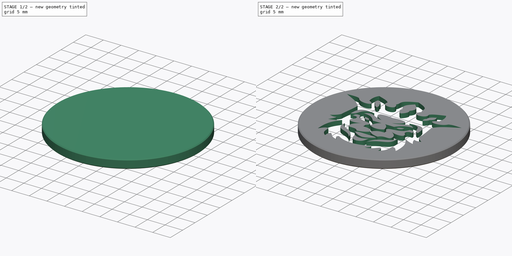
[diagram: build sequence overview — one tinted view per stage of 2, left to right]
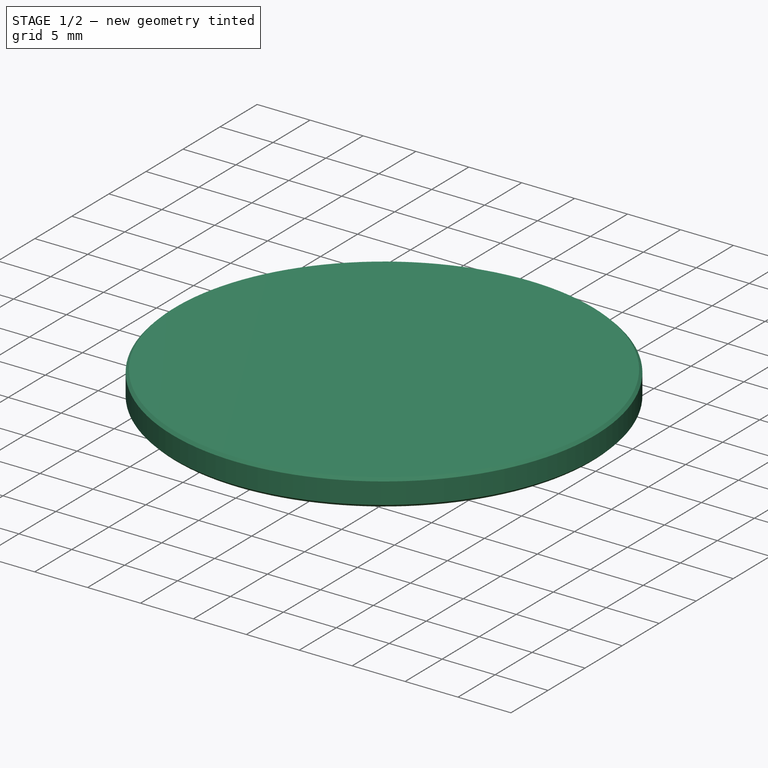
[diagram: stage 1 of 2 — iso view after this stage's code; geometry added in this stage tinted green]
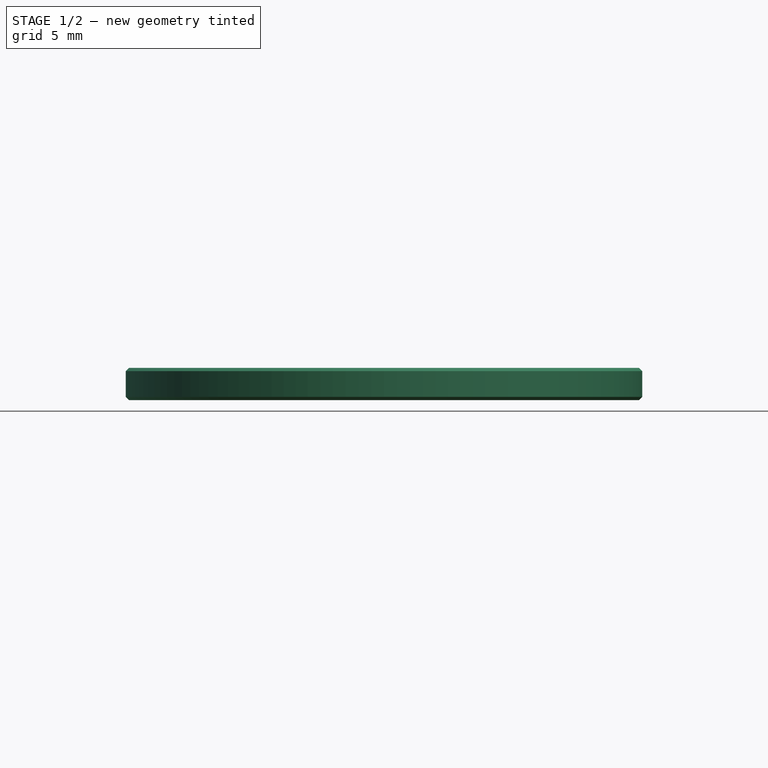
[diagram: stage 1 of 2 — front view after this stage's code; geometry added in this stage tinted green]
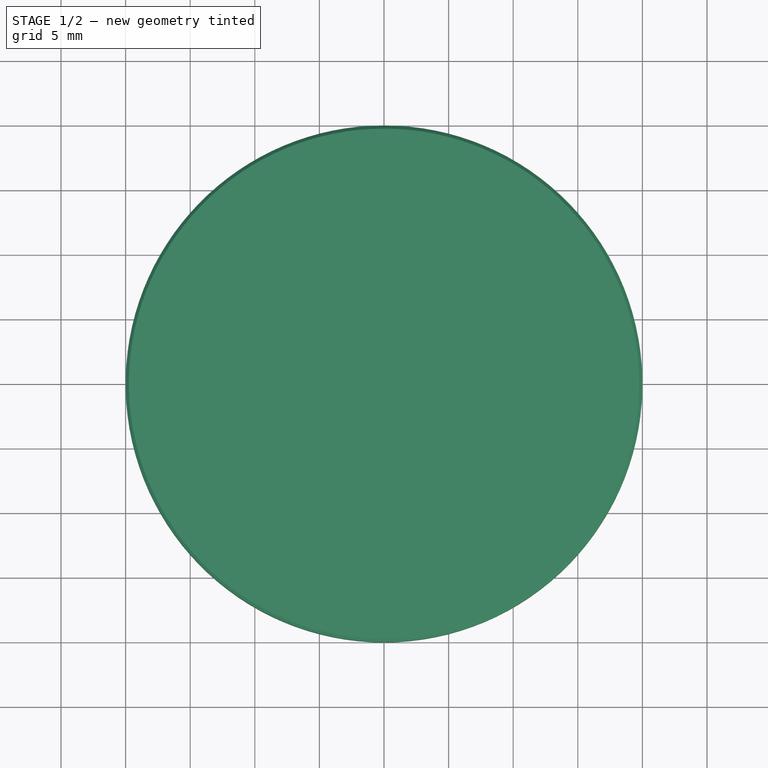
[diagram: stage 1 of 2 — top view after this stage's code; geometry added in this stage tinted green]
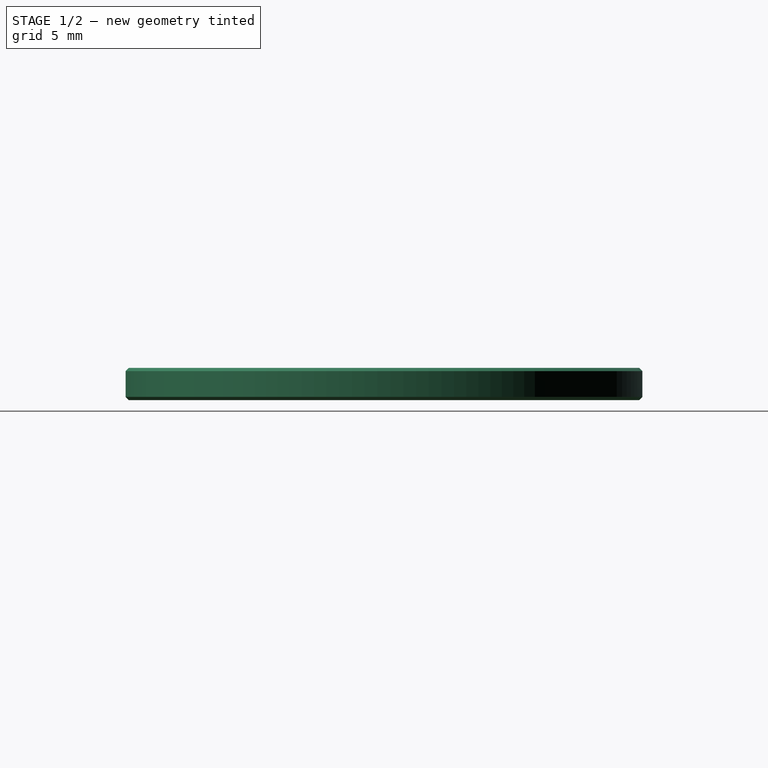
[diagram: stage 1 of 2 — right view after this stage's code; geometry added in this stage tinted green]
FCSTD DOCUMENT  (FreeCAD 0.20R29603 (Git))
Label: lion-coin-60813
License: All rights reserved
LicenseURL: http://en.wikipedia.org/wiki/All_rights_reserved
objects: Part::Feature×29, Sketcher::SketchObject×6, App::DocumentObjectGroup×4, PartDesign::Plane×2, Part::FeaturePython×2, App::TextDocument×1, Spreadsheet::Sheet×1, PartDesign::Revolution×1, PartDesign::Pocket×1, PartDesign::Body×1
note: 44 computed .brp shape members not serialized (recipe doc carries the construction recipe); baked Part::Feature solids carry a one-line shape summary decoded from their .brp

FEATURE [App::TextDocument] Text_document  label="Text document"
  Text = https://publicdomainvectors.org/en/free-clipart/Lion-icon/60813.html
FEATURE [Spreadsheet::Sheet] Spreadsheet
  cells = A2=Vector X center; B2=vec_x; C2(dim_vec_x)==-16.6 mm; A3=Vector Y center; B3=vec_y; C3(dim_vec_y)==14 mm; A4=Coin radius; B4=coin_r; C4(dim_coin_r)==20 mm; A5=Coin height; B5=coin_h; C5(dim_coin_h)==2.5 mm; D5==2.5 mm; A6=Engrave depth; B6=engrave_h; C6(dim_engrave_h)==dim_coin_h / 2; A7=Chamfer width; B7=chamfer_w; C7(dim_chamfer_w)==dim_coin_h / 10; A8=Chamfer radius; B8=chamfer_r; C8(dim_chamfer_r)==dim_coin_r - dim_chamfer_w; A9=SVG Scale; B9=svg_scale; C9=0.06; A11=Edge dimple radius; B11=dimple_r; C11(dim_dimple_r)==0.5 mm; A12=Edge dimple count; B12=dimple_count; C12(dim_dimple_count)=64
FEATURE [PartDesign::Plane] DatumPlane  label="BaseXYDatumPlane"
  Length = 60
  MapMode = 5
  ResizeMode = 0
  Support = -> [XY_Plane]
  Width = 60
FEATURE [Sketcher::SketchObject] Sketch001  label="CircleSketch"
  FullyConstrained = true
  MapMode = 5
  Support = -> [DatumPlane]
  expr: Constraints[1] = Spreadsheet.dim_coin_r - Spreadsheet.dim_chamfer_w
  expr: Constraints[3] = Spreadsheet.dim_coin_r - 1 mm
  sketch-geometry (6):
    g0: Circle CenterX=0 CenterY=0 CenterZ=0 NormalX=0 NormalY=0 NormalZ=1 AngleXU=0 Radius=19.75
    g1: Circle CenterX=0 CenterY=0 CenterZ=0 NormalX=0 NormalY=0 NormalZ=1 AngleXU=0 Radius=19
    g2: LineSegment StartX=0 StartY=0 StartZ=0 EndX=0 EndY=19 EndZ=0
    g3: LineSegment StartX=0 StartY=0 StartZ=0 EndX=0 EndY=-19 EndZ=0
    g4: LineSegment StartX=0 StartY=0 StartZ=0 EndX=-19 EndY=0 EndZ=0
    g5: LineSegment StartX=0 StartY=0 StartZ=0 EndX=19 EndY=0 EndZ=0
  constraints (16):
    c: Coincident(g0,g-1)
    c: Radius(g0) = 19.75
    c: Coincident(g1,g0)
    c: Radius(g1) = 19
    c: Coincident(g2,g0)
    c: PointOnObject(g2,g1)
    c: Vertical(g2)
    c: Coincident(g3,g0)
    c: PointOnObject(g3,g1)
    c: Vertical(g3)
    c: Coincident(g4,g0)
    c: PointOnObject(g4,g1)
    c: Horizontal(g4)
    c: Coincident(g5,g0)
    c: PointOnObject(g5,g1)
    c: Horizontal(g5)
FEATURE [PartDesign::Plane] DatumPlane001  label="ProfileYZDatumPlane"
  Length = 60
  MapMode = 5
  Placement = pos=(0,0,0) rot=(0.57735,0.57735,0.57735;2.0944rad)
  ResizeMode = 0
  Support = -> [YZ_Plane]
  Width = 60
FEATURE [Sketcher::SketchObject] Sketch  label="CoinProfileSketch"
  FullyConstrained = true
  MapMode = 5
  Placement = pos=(0,0,0) rot=(0.57735,0.57735,0.57735;2.0944rad)
  Support = -> [DatumPlane001]
  expr: Constraints[10] = Spreadsheet.dim_chamfer_w
  expr: Constraints[12] = Spreadsheet.dim_coin_h
  expr: Constraints[13] = Spreadsheet.dim_coin_r
  expr: Constraints[14] = Spreadsheet.dim_coin_r
  expr: Constraints[15] = Spreadsheet.dim_coin_h
  expr: Constraints[16] = Spreadsheet.dim_chamfer_r
  sketch-geometry (11):
    g0: LineSegment StartX=0 StartY=0 StartZ=0 EndX=0 EndY=-2.5 EndZ=0
    g1: LineSegment StartX=19.75 StartY=0 StartZ=0 EndX=20 EndY=-0.25 EndZ=0
    g2: LineSegment StartX=20 StartY=-0.25 StartZ=0 EndX=20 EndY=-2.25 EndZ=0
    g3: LineSegment StartX=20.25 StartY=0 StartZ=0 EndX=20 EndY=0 EndZ=0
    g4: LineSegment StartX=20 StartY=0 StartZ=0 EndX=20 EndY=-0.25 EndZ=0
    g5: LineSegment StartX=20 StartY=-2.25 StartZ=0 EndX=20 EndY=-2.5 EndZ=0
    g6: LineSegment StartX=0 StartY=0 StartZ=0 EndX=19.75 EndY=0 EndZ=0
    g7: LineSegment StartX=19.75 StartY=0 StartZ=0 EndX=20 EndY=0 EndZ=0
    g8: LineSegment StartX=20 StartY=-2.5 StartZ=0 EndX=19.75 EndY=-2.5 EndZ=0
    g9: LineSegment StartX=19.75 StartY=-2.5 StartZ=0 EndX=0 EndY=-2.5 EndZ=0
    g10: LineSegment StartX=19.75 StartY=-2.5 StartZ=0 EndX=20 EndY=-2.25 EndZ=0
  constraints (31):
    c: Vertical(g0)
    c: Coincident(g1,g2)
    c: Vertical(g2)
    c: Horizontal(g3)
    c: Coincident(g4,g3)
    c: Coincident(g4,g1)
    c: Coincident(g5,g2)
    c: Vertical(g5)
    c: Vertical(g4)
    c: Equal(g3,g4)
    c: DistanceY(g5,g5) = 0.25
    c: Equal(g5,g4)
    c: DistanceY(g5,g3) = 2.5
    c: DistanceX(g0,g5) = 20
    c: DistanceX(g-1,g3) = 20
    c: DistanceY(g0,g-1) = 2.5
    c: DistanceX(g1) = 19.75
    c: Coincident(g6,g0)
    c: Coincident(g6,g1)
    c: Horizontal(g6)
    c: Coincident(g7,g1)
    c: Coincident(g7,g3)
    c: Horizontal(g7)
    c: Coincident(g8,g5)
    c: Horizontal(g8)
    c: Coincident(g9,g8)
    c: Coincident(g9,g0)
    c: Horizontal(g9)
    c: Coincident(g10,g9)
    c: Coincident(g10,g2)
    c: Equal(g9,g6)
FEATURE [PartDesign::Revolution] Revolution  label="CoinRevolution"
  Angle = 360
  Axis = (-1e-16,1e-16,1)
  Base = (0,0,0)
  Placement = pos=(0,0,0) rot=(0.57735,0.57735,0.57735;2.0944rad)
  Profile = -> Sketch
  ReferenceAxis = -> Sketch [V_Axis]
  Reversed = true
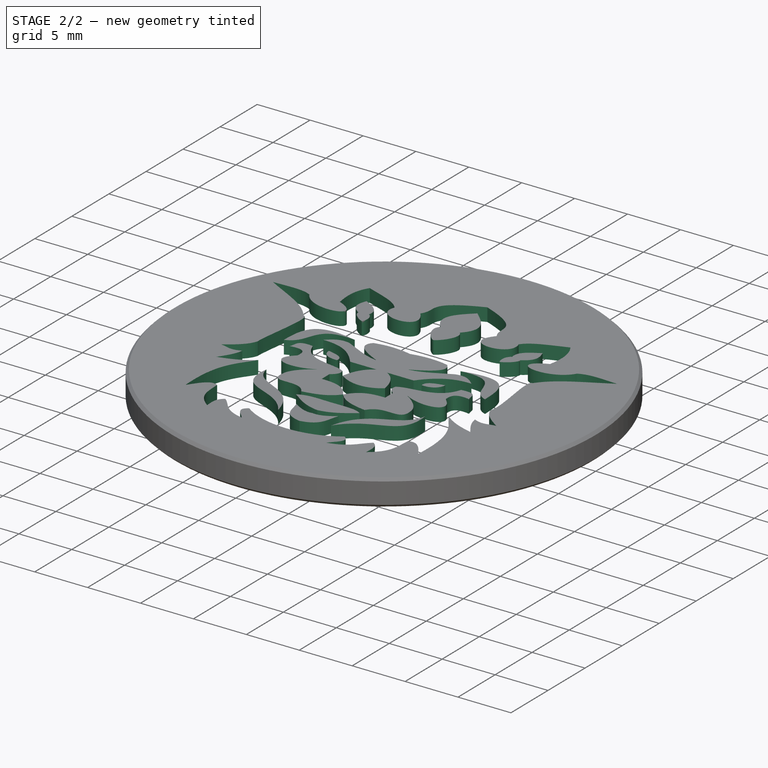
[diagram: stage 2 of 2 — iso view after this stage's code; geometry added in this stage tinted green]
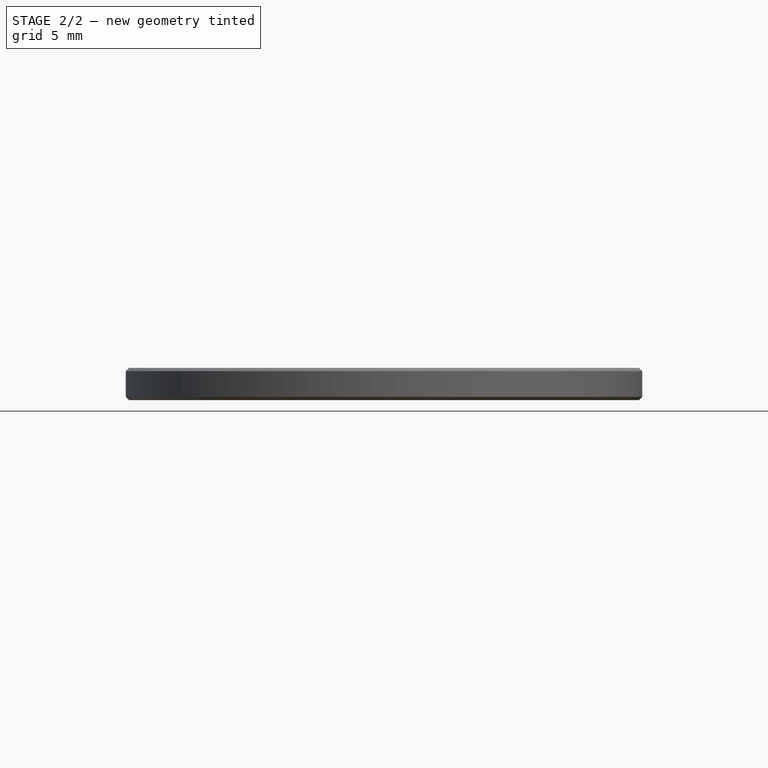
[diagram: stage 2 of 2 — front view after this stage's code; geometry added in this stage tinted green]
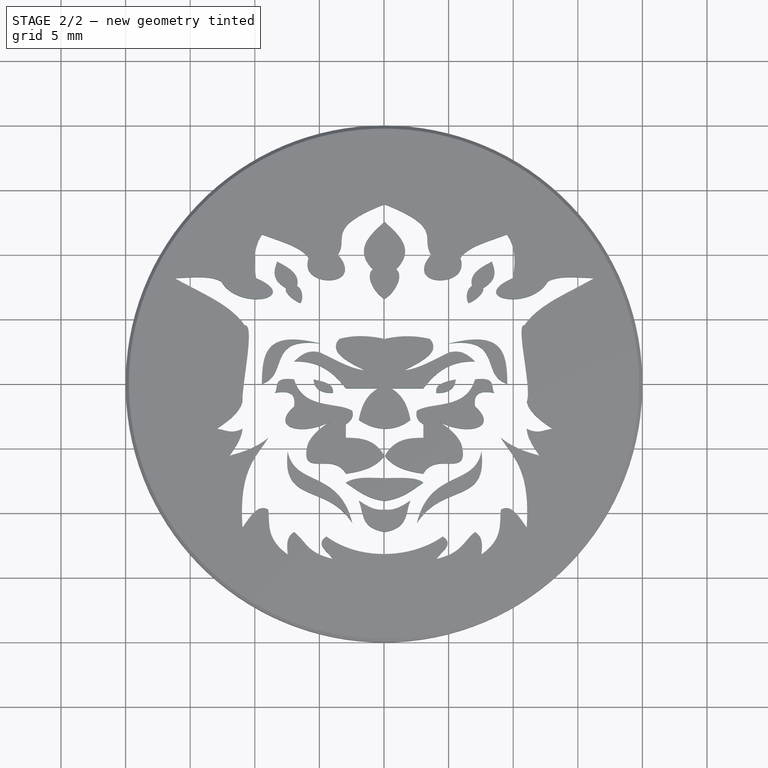
[diagram: stage 2 of 2 — top view after this stage's code; geometry added in this stage tinted green]
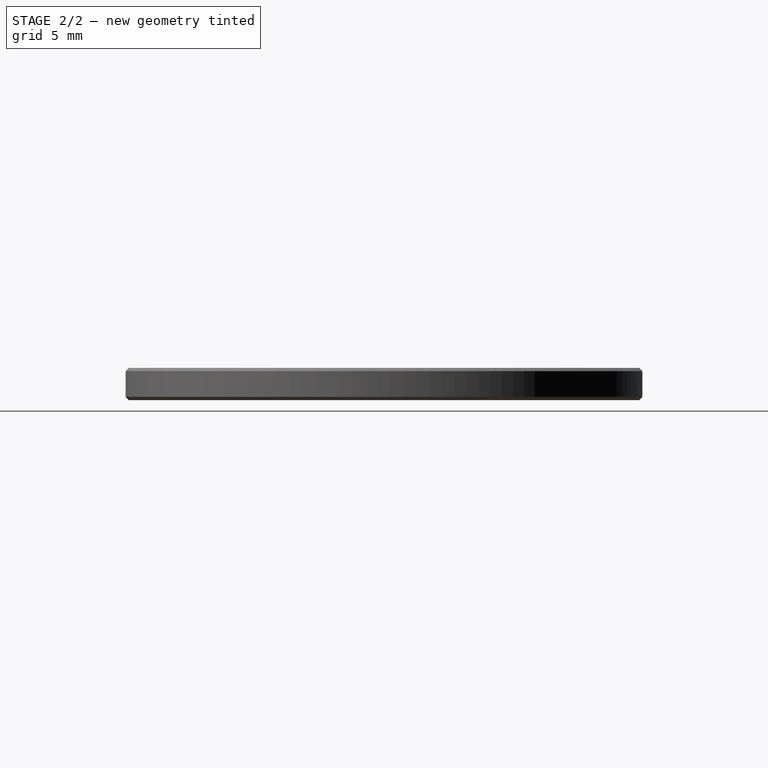
[diagram: stage 2 of 2 — right view after this stage's code; geometry added in this stage tinted green]
FEATURE [Sketcher::SketchObject] Sketch002  label="CoinEdgeProfileSketch"
  FullyConstrained = true
  MapMode = 5
  Placement = pos=(0,0,0) rot=(0.57735,0.57735,0.57735;2.0944rad)
  Support = -> [DatumPlane001]
  expr: Constraints[10] = Spreadsheet.dim_coin_r
  expr: Constraints[11] = Spreadsheet.dim_coin_h
  expr: Constraints[17] = Spreadsheet.dim_chamfer_r
  expr: Constraints[6] = Spreadsheet.dim_chamfer_w
  expr: Constraints[8] = Spreadsheet.dim_coin_h
  expr: Constraints[9] = Spreadsheet.dim_coin_r
  sketch-geometry (13):
    g0: LineSegment StartX=0 StartY=2e-16 StartZ=0 EndX=0 EndY=-2.5 EndZ=0
    g1: LineSegment StartX=20 StartY=-0.25 StartZ=0 EndX=20 EndY=-2.25 EndZ=0
    g2: LineSegment StartX=20 StartY=2e-16 StartZ=0 EndX=20 EndY=-0.25 EndZ=0
    g3: LineSegment StartX=20 StartY=-2.25 StartZ=0 EndX=20 EndY=-2.5 EndZ=0
    g4: LineSegment StartX=0 StartY=2e-16 StartZ=0 EndX=19 EndY=2e-16 EndZ=0
    g5: LineSegment StartX=19 StartY=2e-16 StartZ=0 EndX=19 EndY=-2.5 EndZ=0
    g6: LineSegment StartX=19 StartY=2e-16 StartZ=0 EndX=19.75 EndY=2e-16 EndZ=0
    g7: LineSegment StartX=19.75 StartY=2e-16 StartZ=0 EndX=20 EndY=-0.25 EndZ=0
    g8: LineSegment StartX=19.75 StartY=2e-16 StartZ=0 EndX=20 EndY=2e-16 EndZ=0
    g9: LineSegment StartX=20 StartY=-2.5 StartZ=0 EndX=19.75 EndY=-2.5 EndZ=0
    g10: LineSegment StartX=19 StartY=-2.5 StartZ=0 EndX=0 EndY=-2.5 EndZ=0
    g11: LineSegment StartX=19.75 StartY=-2.5 StartZ=0 EndX=20 EndY=-2.25 EndZ=0
    g12: LineSegment StartX=19.75 StartY=-2.5 StartZ=0 EndX=19 EndY=-2.5 EndZ=0
  constraints (36):
    c: Vertical(g0)
    c: Coincident(g0,g4)
    c: Vertical(g1)
    c: Coincident(g3,g1)
    c: Vertical(g3)
    c: Vertical(g2)
    c: DistanceY(g3,g3) = 0.25
    c: Equal(g3,g2)
    c: DistanceY(g3,g2) = 2.5
    c: DistanceX(g0,g3) = 20
    c: DistanceX(g-1,g2) = 20
    c: DistanceY(g0,g-1) = 2.5
    c: Horizontal(g4)
    c: Vertical(g5)
    c: DistanceX(g4,g2) = 1
    c: Coincident(g6,g5)
    c: Horizontal(g6)
    c: DistanceX(g0,g6) = 19.75
    c: Coincident(g7,g6)
    c: Coincident(g7,g1)
    c: Coincident(g8,g6)
    c: Coincident(g8,g2)
    c: Horizontal(g8)
    c: Coincident(g4,g5)
    c: Coincident(g2,g1)
    c: Coincident(g9,g3)
    c: Horizontal(g9)
    c: Coincident(g10,g5)
    c: Coincident(g10,g0)
    c: Horizontal(g10)
    c: Coincident(g11,g9)
    c: Coincident(g11,g1)
    c: Coincident(g12,g11)
    c: Coincident(g12,g5)
    c: Horizontal(g12)
    c: Equal(g12,g6)
FEATURE [Sketcher::SketchObject] Sketch004  label="EdgeDimpleSketch"
  FullyConstrained = true
  MapMode = 5
  Support = -> [DatumPlane]
  expr: Constraints[2] = Spreadsheet.dim_coin_r
  sketch-geometry (2):
    g0: LineSegment StartX=0 StartY=0 StartZ=0 EndX=20 EndY=0 EndZ=0
    g1: Circle CenterX=20 CenterY=0 CenterZ=0 NormalX=0 NormalY=0 NormalZ=1 AngleXU=0 Radius=0.5
  constraints (5):
    c: Horizontal(g0)
    c: Coincident(g1,g0)
    c: DistanceX(g0,g0) = 20
    c: Coincident(g0,g-1)
    c: Radius(g1) = 0.5
FEATURE [Part::Feature] path3882
  shape: bbox 31.92 x 23.25 x 5.657e-07 mm, 1 faces, 0 solids (baked)
FEATURE [Part::Feature] path3880
  shape: bbox 31.92 x 23.25 x 5.657e-07 mm, 1 faces, 0 solids (baked)
FEATURE [Part::Feature] path3878
  shape: bbox 47.88 x 17.19 x 5.657e-07 mm, 1 faces, 0 solids (baked)
FEATURE [Part::Feature] path3876
  shape: bbox 47.88 x 17.19 x 5.657e-07 mm, 1 faces, 0 solids (baked)
FEATURE [Part::Feature] path3874
  shape: bbox 40.28 x 53.15 x 5.657e-07 mm, 1 faces, 0 solids (baked)
FEATURE [Part::Feature] path3872
  shape: bbox 40.28 x 53.15 x 5.657e-07 mm, 1 faces, 0 solids (baked)
FEATURE [Part::Feature] path3870
  shape: bbox 40.28 x 53.15 x 5.657e-07 mm, 1 faces, 0 solids (baked)
FEATURE [Part::Feature] path3868
  shape: bbox 40.28 x 53.15 x 5.657e-07 mm, 1 faces, 0 solids (baked)
FEATURE [Part::Feature] path3866
  shape: bbox 12.12 x 10.03 x 5.657e-07 mm, 1 faces, 0 solids (baked)
FEATURE [Part::Feature] path3864
  shape: bbox 12.12 x 10.03 x 5.657e-07 mm, 1 faces, 0 solids (baked)
FEATURE [Part::Feature] path3862
  shape: bbox 12.12 x 10.03 x 5.657e-07 mm, 1 faces, 0 solids (baked)
FEATURE [Part::Feature] path3860
  shape: bbox 12.12 x 10.03 x 5.657e-07 mm, 1 faces, 0 solids (baked)
FEATURE [Part::Feature] path3858
  shape: bbox 67.73 x 70.12 x 5.657e-07 mm, 1 faces, 0 solids (baked)
FEATURE [Part::Feature] path3856
  shape: bbox 67.73 x 70.12 x 5.657e-07 mm, 1 faces, 0 solids (baked)
FEATURE [Part::Feature] path3854
  shape: bbox 67.73 x 70.14 x 5.657e-07 mm, 1 faces, 0 solids (baked)
FEATURE [Part::Feature] path3852
  shape: bbox 67.73 x 70.14 x 5.657e-07 mm, 1 faces, 0 solids (baked)
FEATURE [Part::Feature] path3850
  shape: bbox 35.91 x 32.85 x 5.657e-07 mm, 1 faces, 0 solids (baked)
FEATURE [Part::Feature] path3848
  shape: bbox 35.91 x 32.85 x 5.657e-07 mm, 1 faces, 0 solids (baked)
FEATURE [Part::Feature] path3846
  shape: bbox 35.91 x 32.85 x 5.657e-07 mm, 1 faces, 0 solids (baked)
FEATURE [Part::Feature] path3844
  shape: bbox 35.91 x 32.85 x 5.657e-07 mm, 1 faces, 0 solids (baked)
FEATURE [Part::Feature] path3842
  shape: bbox 111.7 x 68.58 x 5.657e-07 mm, 1 faces, 0 solids (baked)
FEATURE [Part::Feature] path3840
  shape: bbox 111.7 x 68.58 x 5.657e-07 mm, 1 faces, 0 solids (baked)
FEATURE [Part::Feature] path3838
  shape: bbox 17.21 x 30.75 x 5.657e-07 mm, 1 faces, 0 solids (baked)
FEATURE [Part::Feature] path3836
  shape: bbox 17.21 x 30.75 x 5.657e-07 mm, 1 faces, 0 solids (baked)
FEATURE [Part::Feature] path3834
  shape: bbox 17.21 x 30.75 x 5.657e-07 mm, 1 faces, 0 solids (baked)
FEATURE [Part::Feature] path3832
  shape: bbox 17.21 x 30.75 x 5.657e-07 mm, 1 faces, 0 solids (baked)
FEATURE [Part::Feature] path3830
  shape: bbox 25.6 x 56.91 x 5.657e-07 mm, 1 faces, 0 solids (baked)
FEATURE [App::DocumentObjectGroup] Group008  label="VectorDetailGroup"
  Group = -> [path3882,path3878,path3874,path3870,path3866,path3862,path3858,path3854,path3850,path3846,path3842,path3838,path3834,path3830]
FEATURE [Part::Feature] path3828
  shape: bbox 25.6 x 56.91 x 5.657e-07 mm, 1 faces, 0 solids (baked)
FEATURE [App::DocumentObjectGroup] Group  label="UnusedGroup"
  Group = -> [path3880,path3876,path3872,path3868,path3864,path3860,path3856,path3852,path3848,path3844,path3840,path3836,path3832,path3828]
FEATURE [Part::Feature] path3826
  shape: bbox 259.3 x 262.4 x 5.657e-07 mm, 1 faces, 0 solids (baked)
FEATURE [App::DocumentObjectGroup] Group007  label="VectorOutlineGroup"
  Group = -> [path3826]
FEATURE [Part::FeaturePython] Clone001  label="ResizeOutline012"  # Draft clone (typed FeaturePython)
  AttacherType = Attacher::AttachEngine3D
  Fuse = false
  Objects = -> [path3826]
  Placement = pos=(-16.6,14,0) rot=(0,0,1;0rad)
  Scale = (0.125328,0.104627,0.128631)
  expr: .Placement.Base.x = Spreadsheet.dim_vec_x
  expr: .Placement.Base.y = Spreadsheet.dim_vec_y
FEATURE [Sketcher::SketchObject] Sketch005  label="VectorOutlineSketch"
  FullyConstrained = false
  sketch-geometry (282):
    g0: BSplineCurve PolesCount=4 KnotsCount=2 Degree=3 IsPeriodic=0
    g1: BSplineCurve PolesCount=4 KnotsCount=2 Degree=3 IsPeriodic=0
    g2: BSplineCurve PolesCount=4 KnotsCount=2 Degree=3 IsPeriodic=0
    g3: BSplineCurve PolesCount=4 KnotsCount=2 Degree=3 IsPeriodic=0
    g4: BSplineCurve PolesCount=4 KnotsCount=2 Degree=3 IsPeriodic=0
    g5: BSplineCurve PolesCount=4 KnotsCount=2 Degree=3 IsPeriodic=0
    g6: BSplineCurve PolesCount=4 KnotsCount=2 Degree=3 IsPeriodic=0
    g7: BSplineCurve PolesCount=4 KnotsCount=2 Degree=3 IsPeriodic=0
    g8: BSplineCurve PolesCount=4 KnotsCount=2 Degree=3 IsPeriodic=0
    g9: BSplineCurve PolesCount=4 KnotsCount=2 Degree=3 IsPeriodic=0
    g10: BSplineCurve PolesCount=4 KnotsCount=2 Degree=3 IsPeriodic=0
    g11: BSplineCurve PolesCount=4 KnotsCount=2 Degree=3 IsPeriodic=0
    g12: BSplineCurve PolesCount=4 KnotsCount=2 Degree=3 IsPeriodic=0
    g13: BSplineCurve PolesCount=4 KnotsCount=2 Degree=3 IsPeriodic=0
    g14: BSplineCurve PolesCount=4 KnotsCount=2 Degree=3 IsPeriodic=0
    g15: BSplineCurve PolesCount=4 KnotsCount=2 Degree=3 IsPeriodic=0
    g16: BSplineCurve PolesCount=4 KnotsCount=2 Degree=3 IsPeriodic=0
    g17: BSplineCurve PolesCount=4 KnotsCount=2 Degree=3 IsPeriodic=0
    g18: BSplineCurve PolesCount=4 KnotsCount=2 Degree=3 IsPeriodic=0
    g19: BSplineCurve PolesCount=4 KnotsCount=2 Degree=3 IsPeriodic=0
    g20: BSplineCurve PolesCount=4 KnotsCount=2 Degree=3 IsPeriodic=0
    g21: BSplineCurve PolesCount=4 KnotsCount=2 Degree=3 IsPeriodic=0
    g22: BSplineCurve PolesCount=4 KnotsCount=2 Degree=3 IsPeriodic=0
    g23: BSplineCurve PolesCount=4 KnotsCount=2 Degree=3 IsPeriodic=0
    g24: BSplineCurve PolesCount=4 KnotsCount=2 Degree=3 IsPeriodic=0
    g25: BSplineCurve PolesCount=4 KnotsCount=2 Degree=3 IsPeriodic=0
    g26: BSplineCurve PolesCount=4 KnotsCount=2 Degree=3 IsPeriodic=0
    g27: BSplineCurve PolesCount=4 KnotsCount=2 Degree=3 IsPeriodic=0
    g28: BSplineCurve PolesCount=4 KnotsCount=2 Degree=3 IsPeriodic=0
    g29: BSplineCurve PolesCount=4 KnotsCount=2 Degree=3 IsPeriodic=0
    g30: BSplineCurve PolesCount=4 KnotsCount=2 Degree=3 IsPeriodic=0
    g31: BSplineCurve PolesCount=4 KnotsCount=2 Degree=3 IsPeriodic=0
    g32: BSplineCurve PolesCount=4 KnotsCount=2 Degree=3 IsPeriodic=0
    g33: BSplineCurve PolesCount=4 KnotsCount=2 Degree=3 IsPeriodic=0
    g34: BSplineCurve PolesCount=4 KnotsCount=2 Degree=3 IsPeriodic=0
    g35: BSplineCurve PolesCount=4 KnotsCount=2 Degree=3 IsPeriodic=0
    g36: BSplineCurve PolesCount=4 KnotsCount=2 Degree=3 IsPeriodic=0
    g37: BSplineCurve PolesCount=4 KnotsCount=2 Degree=3 IsPeriodic=0
    g38: BSplineCurve PolesCount=4 KnotsCount=2 Degree=3 IsPeriodic=0
    g39: BSplineCurve PolesCount=4 KnotsCount=2 Degree=3 IsPeriodic=0
    g40: BSplineCurve PolesCount=4 KnotsCount=2 Degree=3 IsPeriodic=0
    g41: BSplineCurve PolesCount=4 KnotsCount=2 Degree=3 IsPeriodic=0
    g42: BSplineCurve PolesCount=4 KnotsCount=2 Degree=3 IsPeriodic=0
    g43: BSplineCurve PolesCount=4 KnotsCount=2 Degree=3 IsPeriodic=0
    g44: BSplineCurve PolesCount=4 KnotsCount=2 Degree=3 IsPeriodic=0
    g45: BSplineCurve PolesCount=4 KnotsCount=2 Degree=3 IsPeriodic=0
    g46: BSplineCurve PolesCount=4 KnotsCount=2 Degree=3 IsPeriodic=0
    g47: BSplineCurve PolesCount=4 KnotsCount=2 Degree=3 IsPeriodic=0
    g48: BSplineCurve PolesCount=4 KnotsCount=2 Degree=3 IsPeriodic=0
    g49: BSplineCurve PolesCount=4 KnotsCount=2 Degree=3 IsPeriodic=0
    g50: BSplineCurve PolesCount=4 KnotsCount=2 Degree=3 IsPeriodic=0
    g51: BSplineCurve PolesCount=4 KnotsCount=2 Degree=3 IsPeriodic=0
    g52: BSplineCurve PolesCount=4 KnotsCount=2 Degree=3 IsPeriodic=0
    g53: BSplineCurve PolesCount=4 KnotsCount=2 Degree=3 IsPeriodic=0
    g54: BSplineCurve PolesCount=4 KnotsCount=2 Degree=3 IsPeriodic=0
    g55: BSplineCurve PolesCount=4 KnotsCount=2 Degree=3 IsPeriodic=0
    g56: BSplineCurve PolesCount=4 KnotsCount=2 Degree=3 IsPeriodic=0
    g57: BSplineCurve PolesCount=4 KnotsCount=2 Degree=3 IsPeriodic=0
    g58: BSplineCurve PolesCount=4 KnotsCount=2 Degree=3 IsPeriodic=0
    g59: BSplineCurve PolesCount=4 KnotsCount=2 Degree=3 IsPeriodic=0
    g60: BSplineCurve PolesCount=4 KnotsCount=2 Degree=3 IsPeriodic=0
    g61: BSplineCurve PolesCount=4 KnotsCount=2 Degree=3 IsPeriodic=0
    g62: BSplineCurve PolesCount=4 KnotsCount=2 Degree=3 IsPeriodic=0
    g63: BSplineCurve PolesCount=4 KnotsCount=2 Degree=3 IsPeriodic=0
    g64: BSplineCurve PolesCount=4 KnotsCount=2 Degree=3 IsPeriodic=0
    g65: BSplineCurve PolesCount=4 KnotsCount=2 Degree=3 IsPeriodic=0
    g66: BSplineCurve PolesCount=4 KnotsCount=2 Degree=3 IsPeriodic=0
    g67: BSplineCurve PolesCount=4 KnotsCount=2 Degree=3 IsPeriodic=0
    g68: BSplineCurve PolesCount=4 KnotsCount=2 Degree=3 IsPeriodic=0
    g69: BSplineCurve PolesCount=4 KnotsCount=2 Degree=3 IsPeriodic=0
    g70: BSplineCurve PolesCount=4 KnotsCount=2 Degree=3 IsPeriodic=0
    g71: BSplineCurve PolesCount=4 KnotsCount=2 Degree=3 IsPeriodic=0
    g72: BSplineCurve PolesCount=4 KnotsCount=2 Degree=3 IsPeriodic=0
    g73: BSplineCurve PolesCount=4 KnotsCount=2 Degree=3 IsPeriodic=0
    g74: BSplineCurve PolesCount=4 KnotsCount=2 Degree=3 IsPeriodic=0
    g75: BSplineCurve PolesCount=4 KnotsCount=2 Degree=3 IsPeriodic=0
    g76: BSplineCurve PolesCount=4 KnotsCount=2 Degree=3 IsPeriodic=0
    g77: BSplineCurve PolesCount=4 KnotsCount=2 Degree=3 IsPeriodic=0
    g78: BSplineCurve PolesCount=4 KnotsCount=2 Degree=3 IsPeriodic=0
    g79: BSplineCurve PolesCount=4 KnotsCount=2 Degree=3 IsPeriodic=0
    g80: BSplineCurve PolesCount=4 KnotsCount=2 Degree=3 IsPeriodic=0
    g81: BSplineCurve PolesCount=4 KnotsCount=2 Degree=3 IsPeriodic=0
    g82: BSplineCurve PolesCount=4 KnotsCount=2 Degree=3 IsPeriodic=0
    g83: BSplineCurve PolesCount=4 KnotsCount=2 Degree=3 IsPeriodic=0
    g84: BSplineCurve PolesCount=4 KnotsCount=2 Degree=3 IsPeriodic=0
    g85: BSplineCurve PolesCount=4 KnotsCount=2 Degree=3 IsPeriodic=0
    g86: BSplineCurve PolesCount=4 KnotsCount=2 Degree=3 IsPeriodic=0
    g87: BSplineCurve PolesCount=4 KnotsCount=2 Degree=3 IsPeriodic=0
    g88: BSplineCurve PolesCount=4 KnotsCount=2 Degree=3 IsPeriodic=0
    g89: BSplineCurve PolesCount=4 KnotsCount=2 Degree=3 IsPeriodic=0
    g90: BSplineCurve PolesCount=4 KnotsCount=2 Degree=3 IsPeriodic=0
    g91: BSplineCurve PolesCount=4 KnotsCount=2 Degree=3 IsPeriodic=0
    g92: BSplineCurve PolesCount=4 KnotsCount=2 Degree=3 IsPeriodic=0
    g93: BSplineCurve PolesCount=4 KnotsCount=2 Degree=3 IsPeriodic=0
    g94: BSplineCurve PolesCount=4 KnotsCount=2 Degree=3 IsPeriodic=0
    g95: BSplineCurve PolesCount=4 KnotsCount=2 Degree=3 IsPeriodic=0
    g96: BSplineCurve PolesCount=4 KnotsCount=2 Degree=3 IsPeriodic=0
    g97: BSplineCurve PolesCount=4 KnotsCount=2 Degree=3 IsPeriodic=0
    g98: BSplineCurve PolesCount=4 KnotsCount=2 Degree=3 IsPeriodic=0
    g99: BSplineCurve PolesCount=4 KnotsCount=2 Degree=3 IsPeriodic=0
    g100: BSplineCurve PolesCount=4 KnotsCount=2 Degree=3 IsPeriodic=0
    g101: BSplineCurve PolesCount=4 KnotsCount=2 Degree=3 IsPeriodic=0
    g102: BSplineCurve PolesCount=4 KnotsCount=2 Degree=3 IsPeriodic=0
    g103: BSplineCurve PolesCount=4 KnotsCount=2 Degree=3 IsPeriodic=0
    g104: BSplineCurve PolesCount=4 KnotsCount=2 Degree=3 IsPeriodic=0
    g105: BSplineCurve PolesCount=4 KnotsCount=2 Degree=3 IsPeriodic=0
    g106: BSplineCurve PolesCount=4 KnotsCount=2 Degree=3 IsPeriodic=0
    g107: BSplineCurve PolesCount=4 KnotsCount=2 Degree=3 IsPeriodic=0
    g108: BSplineCurve PolesCount=4 KnotsCount=2 Degree=3 IsPeriodic=0
    g109: BSplineCurve PolesCount=4 KnotsCount=2 Degree=3 IsPeriodic=0
    g110: BSplineCurve PolesCount=4 KnotsCount=2 Degree=3 IsPeriodic=0
    g111: BSplineCurve PolesCount=4 KnotsCount=2 Degree=3 IsPeriodic=0
    g112: BSplineCurve PolesCount=4 KnotsCount=2 Degree=3 IsPeriodic=0
    g113: BSplineCurve PolesCount=4 KnotsCount=2 Degree=3 IsPeriodic=0
    g114: BSplineCurve PolesCount=4 KnotsCount=2 Degree=3 IsPeriodic=0
    g115: BSplineCurve PolesCount=4 KnotsCount=2 Degree=3 IsPeriodic=0
    g116: BSplineCurve PolesCount=4 KnotsCount=2 Degree=3 IsPeriodic=0
    g117: BSplineCurve PolesCount=4 KnotsCount=2 Degree=3 IsPeriodic=0
    g118: BSplineCurve PolesCount=4 KnotsCount=2 Degree=3 IsPeriodic=0
    g119: BSplineCurve PolesCount=4 KnotsCount=2 Degree=3 IsPeriodic=0
    g120: BSplineCurve PolesCount=4 KnotsCount=2 Degree=3 IsPeriodic=0
    g121: BSplineCurve PolesCount=4 KnotsCount=2 Degree=3 IsPeriodic=0
    g122: BSplineCurve PolesCount=4 KnotsCount=2 Degree=3 IsPeriodic=0
    g123: BSplineCurve PolesCount=4 KnotsCount=2 Degree=3 IsPeriodic=0
    g124: BSplineCurve PolesCount=4 KnotsCount=2 Degree=3 IsPeriodic=0
    g125: BSplineCurve PolesCount=4 KnotsCount=2 Degree=3 IsPeriodic=0
    g126: BSplineCurve PolesCount=4 KnotsCount=2 Degree=3 IsPeriodic=0
    g127: BSplineCurve PolesCount=4 KnotsCount=2 Degree=3 IsPeriodic=0
    g128: BSplineCurve PolesCount=4 KnotsCount=2 Degree=3 IsPeriodic=0
    g129: BSplineCurve PolesCount=4 KnotsCount=2 Degree=3 IsPeriodic=0
    g130: BSplineCurve PolesCount=4 KnotsCount=2 Degree=3 IsPeriodic=0
    g131: BSplineCurve PolesCount=4 KnotsCount=2 Degree=3 IsPeriodic=0
    g132: BSplineCurve PolesCount=4 KnotsCount=2 Degree=3 IsPeriodic=0
    g133: BSplineCurve PolesCount=4 KnotsCount=2 Degree=3 IsPeriodic=0
    g134: BSplineCurve PolesCount=4 KnotsCount=2 Degree=3 IsPeriodic=0
    g135: BSplineCurve PolesCount=4 KnotsCount=2 Degree=3 IsPeriodic=0
    g136: BSplineCurve PolesCount=4 KnotsCount=2 Degree=3 IsPeriodic=0
    g137: BSplineCurve PolesCount=4 KnotsCount=2 Degree=3 IsPeriodic=0
    g138: BSplineCurve PolesCount=4 KnotsCount=2 Degree=3 IsPeriodic=0
    g139: BSplineCurve PolesCount=4 KnotsCount=2 Degree=3 IsPeriodic=0
    g140: BSplineCurve PolesCount=4 KnotsCount=2 Degree=3 IsPeriodic=0
    g141: BSplineCurve PolesCount=4 KnotsCount=2 Degree=3 IsPeriodic=0
    g142: BSplineCurve PolesCount=4 KnotsCount=2 Degree=3 IsPeriodic=0
    g143: BSplineCurve PolesCount=4 KnotsCount=2 Degree=3 IsPeriodic=0
    g144: BSplineCurve PolesCount=4 KnotsCount=2 Degree=3 IsPeriodic=0
    g145: BSplineCurve PolesCount=4 KnotsCount=2 Degree=3 IsPeriodic=0
    g146: BSplineCurve PolesCount=4 KnotsCount=2 Degree=3 IsPeriodic=0
    g147: BSplineCurve PolesCount=4 KnotsCount=2 Degree=3 IsPeriodic=0
    g148: BSplineCurve PolesCount=4 KnotsCount=2 Degree=3 IsPeriodic=0
    g149: BSplineCurve PolesCount=4 KnotsCount=2 Degree=3 IsPeriodic=0
    g150: BSplineCurve PolesCount=4 KnotsCount=2 Degree=3 IsPeriodic=0
    g151: BSplineCurve PolesCount=4 KnotsCount=2 Degree=3 IsPeriodic=0
    g152: BSplineCurve PolesCount=4 KnotsCount=2 Degree=3 IsPeriodic=0
    g153: BSplineCurve PolesCount=4 KnotsCount=2 Degree=3 IsPeriodic=0
    g154: BSplineCurve PolesCount=4 KnotsCount=2 Degree=3 IsPeriodic=0
    g155: BSplineCurve PolesCount=4 KnotsCount=2 Degree=3 IsPeriodic=0
    g156: BSplineCurve PolesCount=4 KnotsCount=2 Degree=3 IsPeriodic=0
    g157: BSplineCurve PolesCount=4 KnotsCount=2 Degree=3 IsPeriodic=0
    g158: BSplineCurve PolesCount=4 KnotsCount=2 Degree=3 IsPeriodic=0
    g159: BSplineCurve PolesCount=4 KnotsCount=2 Degree=3 IsPeriodic=0
    g160: BSplineCurve PolesCount=4 KnotsCount=2 Degree=3 IsPeriodic=0
    g161: BSplineCurve PolesCount=4 KnotsCount=2 Degree=3 IsPeriodic=0
    g162: BSplineCurve PolesCount=4 KnotsCount=2 Degree=3 IsPeriodic=0
    g163: BSplineCurve PolesCount=4 KnotsCount=2 Degree=3 IsPeriodic=0
    g164: BSplineCurve PolesCount=4 KnotsCount=2 Degree=3 IsPeriodic=0
    g165: BSplineCurve PolesCount=4 KnotsCount=2 Degree=3 IsPeriodic=0
    g166: BSplineCurve PolesCount=4 KnotsCount=2 Degree=3 IsPeriodic=0
    g167: BSplineCurve PolesCount=4 KnotsCount=2 Degree=3 IsPeriodic=0
    g168: BSplineCurve PolesCount=4 KnotsCount=2 Degree=3 IsPeriodic=0
    g169: BSplineCurve PolesCount=4 KnotsCount=2 Degree=3 IsPeriodic=0
    g170: BSplineCurve PolesCount=4 KnotsCount=2 Degree=3 IsPeriodic=0
    g171: BSplineCurve PolesCount=4 KnotsCount=2 Degree=3 IsPeriodic=0
    g172: BSplineCurve PolesCount=4 KnotsCount=2 Degree=3 IsPeriodic=0
    g173: BSplineCurve PolesCount=4 KnotsCount=2 Degree=3 IsPeriodic=0
    g174: BSplineCurve PolesCount=4 KnotsCount=2 Degree=3 IsPeriodic=0
    g175: BSplineCurve PolesCount=4 KnotsCount=2 Degree=3 IsPeriodic=0
    g176: BSplineCurve PolesCount=4 KnotsCount=2 Degree=3 IsPeriodic=0
    g177: BSplineCurve PolesCount=4 KnotsCount=2 Degree=3 IsPeriodic=0
    g178: BSplineCurve PolesCount=4 KnotsCount=2 Degree=3 IsPeriodic=0
    g179: BSplineCurve PolesCount=4 KnotsCount=2 Degree=3 IsPeriodic=0
    g180: BSplineCurve PolesCount=4 KnotsCount=2 Degree=3 IsPeriodic=0
    g181: BSplineCurve PolesCount=4 KnotsCount=2 Degree=3 IsPeriodic=0
    g182: BSplineCurve PolesCount=4 KnotsCount=2 Degree=3 IsPeriodic=0
    g183: BSplineCurve PolesCount=4 KnotsCount=2 Degree=3 IsPeriodic=0
    g184: BSplineCurve PolesCount=4 KnotsCount=2 Degree=3 IsPeriodic=0
    g185: BSplineCurve PolesCount=4 KnotsCount=2 Degree=3 IsPeriodic=0
    g186: BSplineCurve PolesCount=4 KnotsCount=2 Degree=3 IsPeriodic=0
    g187: BSplineCurve PolesCount=4 KnotsCount=2 Degree=3 IsPeriodic=0
    g188: BSplineCurve PolesCount=4 KnotsCount=2 Degree=3 IsPeriodic=0
    g189: BSplineCurve PolesCount=4 KnotsCount=2 Degree=3 IsPeriodic=0
    g190: BSplineCurve PolesCount=4 KnotsCount=2 Degree=3 IsPeriodic=0
    g191: BSplineCurve PolesCount=4 KnotsCount=2 Degree=3 IsPeriodic=0
    g192: BSplineCurve PolesCount=4 KnotsCount=2 Degree=3 IsPeriodic=0
    g193: BSplineCurve PolesCount=4 KnotsCount=2 Degree=3 IsPeriodic=0
    g194: BSplineCurve PolesCount=4 KnotsCount=2 Degree=3 IsPeriodic=0
    g195: BSplineCurve PolesCount=4 KnotsCount=2 Degree=3 IsPeriodic=0
    g196: BSplineCurve PolesCount=4 KnotsCount=2 Degree=3 IsPeriodic=0
    g197: BSplineCurve PolesCount=4 KnotsCount=2 Degree=3 IsPeriodic=0
    g198: BSplineCurve PolesCount=4 KnotsCount=2 Degree=3 IsPeriodic=0
    g199: BSplineCurve PolesCount=4 KnotsCount=2 Degree=3 IsPeriodic=0
    g200: BSplineCurve PolesCount=4 KnotsCount=2 Degree=3 IsPeriodic=0
    g201: BSplineCurve PolesCount=4 KnotsCount=2 Degree=3 IsPeriodic=0
    g202: BSplineCurve PolesCount=4 KnotsCount=2 Degree=3 IsPeriodic=0
    g203: BSplineCurve PolesCount=4 KnotsCount=2 Degree=3 IsPeriodic=0
    g204: BSplineCurve PolesCount=4 KnotsCount=2 Degree=3 IsPeriodic=0
    g205: BSplineCurve PolesCount=4 KnotsCount=2 Degree=3 IsPeriodic=0
    g206: BSplineCurve PolesCount=4 KnotsCount=2 Degree=3 IsPeriodic=0
    g207: BSplineCurve PolesCount=4 KnotsCount=2 Degree=3 IsPeriodic=0
    g208: BSplineCurve PolesCount=4 KnotsCount=2 Degree=3 IsPeriodic=0
    g209: BSplineCurve PolesCount=4 KnotsCount=2 Degree=3 IsPeriodic=0
    g210: BSplineCurve PolesCount=4 KnotsCount=2 Degree=3 IsPeriodic=0
    g211: BSplineCurve PolesCount=4 KnotsCount=2 Degree=3 IsPeriodic=0
    g212: BSplineCurve PolesCount=4 KnotsCount=2 Degree=3 IsPeriodic=0
    g213: BSplineCurve PolesCount=4 KnotsCount=2 Degree=3 IsPeriodic=0
    g214: BSplineCurve PolesCount=4 KnotsCount=2 Degree=3 IsPeriodic=0
    g215: BSplineCurve PolesCount=4 KnotsCount=2 Degree=3 IsPeriodic=0
    g216: BSplineCurve PolesCount=4 KnotsCount=2 Degree=3 IsPeriodic=0
    g217: BSplineCurve PolesCount=4 KnotsCount=2 Degree=3 IsPeriodic=0
    g218: BSplineCurve PolesCount=4 KnotsCount=2 Degree=3 IsPeriodic=0
    g219: BSplineCurve PolesCount=4 KnotsCount=2 Degree=3 IsPeriodic=0
    g220: BSplineCurve PolesCount=4 KnotsCount=2 Degree=3 IsPeriodic=0
    g221: BSplineCurve PolesCount=4 KnotsCount=2 Degree=3 IsPeriodic=0
    g222: BSplineCurve PolesCount=4 KnotsCount=2 Degree=3 IsPeriodic=0
    g223: BSplineCurve PolesCount=4 KnotsCount=2 Degree=3 IsPeriodic=0
    g224: BSplineCurve PolesCount=4 KnotsCount=2 Degree=3 IsPeriodic=0
    g225: BSplineCurve PolesCount=4 KnotsCount=2 Degree=3 IsPeriodic=0
    g226: BSplineCurve PolesCount=4 KnotsCount=2 Degree=3 IsPeriodic=0
    g227: BSplineCurve PolesCount=4 KnotsCount=2 Degree=3 IsPeriodic=0
    g228: BSplineCurve PolesCount=4 KnotsCount=2 Degree=3 IsPeriodic=0
    g229: BSplineCurve PolesCount=4 KnotsCount=2 Degree=3 IsPeriodic=0
    g230: BSplineCurve PolesCount=4 KnotsCount=2 Degree=3 IsPeriodic=0
    g231: BSplineCurve PolesCount=4 KnotsCount=2 Degree=3 IsPeriodic=0
    g232: BSplineCurve PolesCount=4 KnotsCount=2 Degree=3 IsPeriodic=0
    g233: BSplineCurve PolesCount=4 KnotsCount=2 Degree=3 IsPeriodic=0
    g234: BSplineCurve PolesCount=4 KnotsCount=2 Degree=3 IsPeriodic=0
    g235: BSplineCurve PolesCount=4 KnotsCount=2 Degree=3 IsPeriodic=0
    g236: BSplineCurve PolesCount=4 KnotsCount=2 Degree=3 IsPeriodic=0
    g237: BSplineCurve PolesCount=4 KnotsCount=2 Degree=3 IsPeriodic=0
    g238: BSplineCurve PolesCount=4 KnotsCount=2 Degree=3 IsPeriodic=0
    g239: BSplineCurve PolesCount=4 KnotsCount=2 Degree=3 IsPeriodic=0
    g240: BSplineCurve PolesCount=4 KnotsCount=2 Degree=3 IsPeriodic=0
    g241: BSplineCurve PolesCount=4 KnotsCount=2 Degree=3 IsPeriodic=0
    g242: BSplineCurve PolesCount=4 KnotsCount=2 Degree=3 IsPeriodic=0
    g243: BSplineCurve PolesCount=4 KnotsCount=2 Degree=3 IsPeriodic=0
    g244: BSplineCurve PolesCount=4 KnotsCount=2 Degree=3 IsPeriodic=0
    g245: BSplineCurve PolesCount=4 KnotsCount=2 Degree=3 IsPeriodic=0
    g246: BSplineCurve PolesCount=4 KnotsCount=2 Degree=3 IsPeriodic=0
    g247: BSplineCurve PolesCount=4 KnotsCount=2 Degree=3 IsPeriodic=0
    g248: BSplineCurve PolesCount=4 KnotsCount=2 Degree=3 IsPeriodic=0
    g249: BSplineCurve PolesCount=4 KnotsCount=2 Degree=3 IsPeriodic=0
    g250: BSplineCurve PolesCount=4 KnotsCount=2 Degree=3 IsPeriodic=0
    g251: BSplineCurve PolesCount=4 KnotsCount=2 Degree=3 IsPeriodic=0
    g252: BSplineCurve PolesCount=4 KnotsCount=2 Degree=3 IsPeriodic=0
    g253: BSplineCurve PolesCount=4 KnotsCount=2 Degree=3 IsPeriodic=0
    g254: BSplineCurve PolesCount=4 KnotsCount=2 Degree=3 IsPeriodic=0
    g255: BSplineCurve PolesCount=4 KnotsCount=2 Degree=3 IsPeriodic=0
    g256: BSplineCurve PolesCount=4 KnotsCount=2 Degree=3 IsPeriodic=0
    g257: BSplineCurve PolesCount=4 KnotsCount=2 Degree=3 IsPeriodic=0
    g258: BSplineCurve PolesCount=4 KnotsCount=2 Degree=3 IsPeriodic=0
    g259: BSplineCurve PolesCount=4 KnotsCount=2 Degree=3 IsPeriodic=0
    g260: BSplineCurve PolesCount=4 KnotsCount=2 Degree=3 IsPeriodic=0
    g261: BSplineCurve PolesCount=4 KnotsCount=2 Degree=3 IsPeriodic=0
    g262: BSplineCurve PolesCount=4 KnotsCount=2 Degree=3 IsPeriodic=0
    g263: BSplineCurve PolesCount=4 KnotsCount=2 Degree=3 IsPeriodic=0
    g264: BSplineCurve PolesCount=4 KnotsCount=2 Degree=3 IsPeriodic=0
    g265: BSplineCurve PolesCount=4 KnotsCount=2 Degree=3 IsPeriodic=0
    g266: BSplineCurve PolesCount=4 KnotsCount=2 Degree=3 IsPeriodic=0
    g267: BSplineCurve PolesCount=4 KnotsCount=2 Degree=3 IsPeriodic=0
    g268: BSplineCurve PolesCount=4 KnotsCount=2 Degree=3 IsPeriodic=0
    g269: BSplineCurve PolesCount=4 KnotsCount=2 Degree=3 IsPeriodic=0
    g270: BSplineCurve PolesCount=4 KnotsCount=2 Degree=3 IsPeriodic=0
    g271: BSplineCurve PolesCount=4 KnotsCount=2 Degree=3 IsPeriodic=0
    g272: BSplineCurve PolesCount=4 KnotsCount=2 Degree=3 IsPeriodic=0
    g273: BSplineCurve PolesCount=4 KnotsCount=2 Degree=3 IsPeriodic=0
    g274: BSplineCurve PolesCount=4 KnotsCount=2 Degree=3 IsPeriodic=0
    g275: BSplineCurve PolesCount=4 KnotsCount=2 Degree=3 IsPeriodic=0
    g276: BSplineCurve PolesCount=4 KnotsCount=2 Degree=3 IsPeriodic=0
    g277: BSplineCurve PolesCount=4 KnotsCount=2 Degree=3 IsPeriodic=0
    g278: BSplineCurve PolesCount=4 KnotsCount=2 Degree=3 IsPeriodic=0
    g279: BSplineCurve PolesCount=4 KnotsCount=2 Degree=3 IsPeriodic=0
    g280: BSplineCurve PolesCount=4 KnotsCount=2 Degree=3 IsPeriodic=0
    g281: BSplineCurve PolesCount=2 KnotsCount=2 Degree=1 IsPeriodic=0
  constraints (282):
    c: Coincident(g0,g1)
    c: Coincident(g1,g2)
    c: Coincident(g2,g3)
    c: Coincident(g3,g4)
    c: Coincident(g4,g5)
    c: Coincident(g5,g6)
    c: Coincident(g6,g7)
    c: Coincident(g7,g8)
    c: Coincident(g8,g9)
    c: Coincident(g9,g10)
    c: Coincident(g10,g11)
    c: Coincident(g11,g12)
    c: Coincident(g12,g13)
    c: Coincident(g13,g14)
    c: Coincident(g14,g15)
    c: Coincident(g15,g16)
    c: Coincident(g16,g17)
    c: Coincident(g17,g18)
    c: Coincident(g18,g19)
    c: Coincident(g19,g20)
    c: Coincident(g20,g21)
    c: Coincident(g21,g22)
    c: Coincident(g22,g23)
    c: Coincident(g23,g24)
    c: Coincident(g24,g25)
    c: Coincident(g25,g26)
    c: Coincident(g26,g27)
    c: Coincident(g27,g28)
    c: Coincident(g28,g29)
    c: Coincident(g29,g30)
    c: Coincident(g30,g31)
    c: Coincident(g31,g32)
    c: Coincident(g32,g33)
    c: Coincident(g33,g34)
    c: Coincident(g34,g35)
    c: Coincident(g35,g36)
    c: Coincident(g36,g37)
    c: Coincident(g37,g38)
    c: Coincident(g38,g39)
    c: Coincident(g39,g40)
    c: Coincident(g40,g41)
    c: Coincident(g41,g42)
    c: Coincident(g42,g43)
    c: Coincident(g43,g44)
    c: Coincident(g44,g45)
    c: Coincident(g45,g46)
    c: Coincident(g46,g47)
    c: Coincident(g47,g48)
    c: Coincident(g48,g49)
    c: Coincident(g49,g50)
    c: Coincident(g50,g51)
    c: Coincident(g51,g52)
    c: Coincident(g52,g53)
    c: Coincident(g53,g54)
    c: Coincident(g54,g55)
    c: Coincident(g55,g56)
    c: Coincident(g56,g57)
    c: Coincident(g57,g58)
    c: Coincident(g58,g59)
    c: Coincident(g59,g60)
    c: Coincident(g60,g61)
    c: Coincident(g61,g62)
    c: Coincident(g62,g63)
    c: Coincident(g63,g64)
    c: Coincident(g64,g65)
    c: Coincident(g65,g66)
    c: Coincident(g66,g67)
    c: Coincident(g67,g68)
    c: Coincident(g68,g69)
    c: Coincident(g69,g70)
    c: Coincident(g70,g71)
    c: Coincident(g71,g72)
    c: Coincident(g72,g73)
    c: Coincident(g73,g74)
    c: Coincident(g74,g75)
    c: Coincident(g75,g76)
    c: Coincident(g76,g77)
    c: Coincident(g77,g78)
    c: Coincident(g78,g79)
    c: Coincident(g79,g80)
    c: Coincident(g80,g81)
    c: Coincident(g81,g82)
    c: Coincident(g82,g83)
    c: Coincident(g83,g84)
    c: Coincident(g84,g85)
    c: Coincident(g85,g86)
    c: Coincident(g86,g87)
    c: Coincident(g87,g88)
    c: Coincident(g88,g89)
    c: Coincident(g89,g90)
    c: Coincident(g90,g91)
    c: Coincident(g91,g92)
    c: Coincident(g92,g93)
    c: Coincident(g93,g94)
    c: Coincident(g94,g95)
    c: Coincident(g95,g96)
    c: Coincident(g96,g97)
    c: Coincident(g97,g98)
    c: Coincident(g98,g99)
    c: Coincident(g99,g100)
    c: Coincident(g100,g101)
    c: Coincident(g101,g102)
    c: Coincident(g102,g103)
    c: Coincident(g103,g104)
    c: Coincident(g104,g105)
    c: Coincident(g105,g106)
    c: Coincident(g106,g107)
    c: Coincident(g107,g108)
    c: Coincident(g108,g109)
    c: Coincident(g109,g110)
    c: Coincident(g110,g111)
    c: Coincident(g111,g112)
    c: Coincident(g112,g113)
    c: Coincident(g113,g114)
    c: Coincident(g114,g115)
    c: Coincident(g115,g116)
    c: Coincident(g116,g117)
    c: Coincident(g117,g118)
    c: Coincident(g118,g119)
    c: Coincident(g119,g120)
    c: Coincident(g120,g121)
    c: Coincident(g121,g122)
    c: Coincident(g122,g123)
    c: Coincident(g123,g124)
    c: Coincident(g124,g125)
    c: Coincident(g125,g126)
    c: Coincident(g126,g127)
    c: Coincident(g127,g128)
    c: Coincident(g128,g129)
    c: Coincident(g129,g130)
    c: Coincident(g130,g131)
    c: Coincident(g131,g132)
    c: Coincident(g132,g133)
    c: Coincident(g133,g134)
    c: Coincident(g134,g135)
    c: Coincident(g135,g136)
    c: Coincident(g136,g137)
    c: Coincident(g137,g138)
    c: Coincident(g138,g139)
    c: Coincident(g139,g140)
    c: Coincident(g140,g141)
    c: Coincident(g141,g142)
    c: Coincident(g142,g143)
    c: Coincident(g143,g144)
    c: Coincident(g144,g145)
    c: Coincident(g145,g146)
    c: Coincident(g146,g147)
    c: Coincident(g147,g148)
    c: Coincident(g148,g149)
    c: Coincident(g149,g150)
    c: Coincident(g150,g151)
    c: Coincident(g151,g152)
    c: Coincident(g152,g153)
    c: Coincident(g153,g154)
    c: Coincident(g154,g155)
    c: Coincident(g155,g156)
    c: Coincident(g156,g157)
    c: Coincident(g157,g158)
    c: Coincident(g158,g159)
    c: Coincident(g159,g160)
    c: Coincident(g160,g161)
    c: Coincident(g161,g162)
    c: Coincident(g162,g163)
    c: Coincident(g163,g164)
    c: Coincident(g164,g165)
    c: Coincident(g165,g166)
    c: Coincident(g166,g167)
    c: Coincident(g167,g168)
    c: Coincident(g168,g169)
    c: Coincident(g169,g170)
    c: Coincident(g170,g171)
    c: Coincident(g171,g172)
    c: Coincident(g172,g173)
    c: Coincident(g173,g174)
    c: Coincident(g174,g175)
    c: Coincident(g175,g176)
    c: Coincident(g176,g177)
    c: Coincident(g177,g178)
    c: Coincident(g178,g179)
    c: Coincident(g179,g180)
    c: Coincident(g180,g181)
    c: Coincident(g181,g182)
    c: Coincident(g182,g183)
    c: Coincident(g183,g184)
    c: Coincident(g184,g185)
    c: Coincident(g185,g186)
    c: Coincident(g186,g187)
    c: Coincident(g187,g188)
    c: Coincident(g188,g189)
    c: Coincident(g189,g190)
    c: Coincident(g190,g191)
    c: Coincident(g191,g192)
    c: Coincident(g192,g193)
    c: Coincident(g193,g194)
    c: Coincident(g194,g195)
    c: Coincident(g195,g196)
    c: Coincident(g196,g197)
    c: Coincident(g197,g198)
    c: Coincident(g198,g199)
    c: Coincident(g199,g200)
    c: Coincident(g200,g201)
    c: Coincident(g201,g202)
    c: Coincident(g202,g203)
    c: Coincident(g203,g204)
    c: Coincident(g204,g205)
    c: Coincident(g205,g206)
    c: Coincident(g206,g207)
    c: Coincident(g207,g208)
    c: Coincident(g208,g209)
    c: Coincident(g209,g210)
    c: Coincident(g210,g211)
    c: Coincident(g211,g212)
    c: Coincident(g212,g213)
    c: Coincident(g213,g214)
    c: Coincident(g214,g215)
    c: Coincident(g215,g216)
    c: Coincident(g216,g217)
    c: Coincident(g217,g218)
    c: Coincident(g218,g219)
    c: Coincident(g219,g220)
    c: Coincident(g220,g221)
    c: Coincident(g221,g222)
    c: Coincident(g222,g223)
    c: Coincident(g223,g224)
    c: Coincident(g224,g225)
    c: Coincident(g225,g226)
    c: Coincident(g226,g227)
    c: Coincident(g227,g228)
    c: Coincident(g228,g229)
    c: Coincident(g229,g230)
    c: Coincident(g230,g231)
    c: Coincident(g231,g232)
    c: Coincident(g232,g233)
    c: Coincident(g233,g234)
    c: Coincident(g234,g235)
    c: Coincident(g235,g236)
    c: Coincident(g236,g237)
    c: Coincident(g237,g238)
    c: Coincident(g238,g239)
    c: Coincident(g239,g240)
    c: Coincident(g240,g241)
    c: Coincident(g241,g242)
    c: Coincident(g242,g243)
    c: Coincident(g243,g244)
    c: Coincident(g244,g245)
    c: Coincident(g245,g246)
    c: Coincident(g246,g247)
    c: Coincident(g247,g248)
    c: Coincident(g248,g249)
    c: Coincident(g249,g250)
    c: Coincident(g250,g251)
    c: Coincident(g251,g252)
    c: Coincident(g252,g253)
    c: Coincident(g253,g254)
    c: Coincident(g254,g255)
    c: Coincident(g255,g256)
    c: Coincident(g256,g257)
    c: Coincident(g257,g258)
    c: Coincident(g258,g259)
    c: Coincident(g259,g260)
    c: Coincident(g260,g261)
    c: Coincident(g261,g262)
    c: Coincident(g262,g263)
    c: Coincident(g263,g264)
    c: Coincident(g264,g265)
    c: Coincident(g265,g266)
    c: Coincident(g266,g267)
    c: Coincident(g267,g268)
    c: Coincident(g268,g269)
    c: Coincident(g269,g270)
    c: Coincident(g270,g271)
    c: Coincident(g271,g272)
    c: Coincident(g272,g273)
    c: Coincident(g273,g274)
    c: Coincident(g274,g275)
    c: Coincident(g275,g276)
    c: Coincident(g276,g277)
    c: Coincident(g277,g278)
    c: Coincident(g278,g279)
    c: Coincident(g279,g280)
    c: Coincident(g280,g281)
    c: Coincident(g281,g0)
FEATURE [Part::FeaturePython] Clone  label="ResizeDetail012"  # Draft clone (typed FeaturePython)
  AttacherType = Attacher::AttachEngine3D
  Fuse = false
  Objects = -> [path3882,path3878,path3874,path3870,path3866,path3862,path3858,path3854,path3850,path3846,path3842,path3838,path3834,path3830]
  Placement = pos=(-16.6,14,0) rot=(0,0,1;0rad)
  Scale = (0.125328,0.104627,0.128631)
  expr: .Placement.Base.x = Spreadsheet.dim_vec_x
  expr: .Placement.Base.y = Spreadsheet.dim_vec_y
FEATURE [App::DocumentObjectGroup] Group009  label="ResizeGroup"
  Group = -> [Clone001,Clone]
FEATURE [Sketcher::SketchObject] Sketch006  label="VectorSketch"
  FullyConstrained = false
  sketch-geometry (790):
    g0: BSplineCurve PolesCount=4 KnotsCount=2 Degree=3 IsPeriodic=0
    g1: BSplineCurve PolesCount=4 KnotsCount=2 Degree=3 IsPeriodic=0
    g2: BSplineCurve PolesCount=4 KnotsCount=2 Degree=3 IsPeriodic=0
    g3: BSplineCurve PolesCount=4 KnotsCount=2 Degree=3 IsPeriodic=0
    g4: BSplineCurve PolesCount=4 KnotsCount=2 Degree=3 IsPeriodic=0
    g5: BSplineCurve PolesCount=4 KnotsCount=2 Degree=3 IsPeriodic=0
    g6: BSplineCurve PolesCount=4 KnotsCount=2 Degree=3 IsPeriodic=0
    g7: BSplineCurve PolesCount=4 KnotsCount=2 Degree=3 IsPeriodic=0
    g8: BSplineCurve PolesCount=4 KnotsCount=2 Degree=3 IsPeriodic=0
    g9: BSplineCurve PolesCount=4 KnotsCount=2 Degree=3 IsPeriodic=0
    g10: BSplineCurve PolesCount=4 KnotsCount=2 Degree=3 IsPeriodic=0
    g11: BSplineCurve PolesCount=4 KnotsCount=2 Degree=3 IsPeriodic=0
    g12: BSplineCurve PolesCount=4 KnotsCount=2 Degree=3 IsPeriodic=0
    g13: BSplineCurve PolesCount=4 KnotsCount=2 Degree=3 IsPeriodic=0
    g14: BSplineCurve PolesCount=4 KnotsCount=2 Degree=3 IsPeriodic=0
    g15: BSplineCurve PolesCount=4 KnotsCount=2 Degree=3 IsPeriodic=0
    g16: BSplineCurve PolesCount=4 KnotsCount=2 Degree=3 IsPeriodic=0
    g17: BSplineCurve PolesCount=4 KnotsCount=2 Degree=3 IsPeriodic=0
    g18: BSplineCurve PolesCount=4 KnotsCount=2 Degree=3 IsPeriodic=0
    g19: BSplineCurve PolesCount=4 KnotsCount=2 Degree=3 IsPeriodic=0
    g20: BSplineCurve PolesCount=4 KnotsCount=2 Degree=3 IsPeriodic=0
    g21: BSplineCurve PolesCount=4 KnotsCount=2 Degree=3 IsPeriodic=0
    g22: BSplineCurve PolesCount=4 KnotsCount=2 Degree=3 IsPeriodic=0
    g23: BSplineCurve PolesCount=4 KnotsCount=2 Degree=3 IsPeriodic=0
    g24: BSplineCurve PolesCount=4 KnotsCount=2 Degree=3 IsPeriodic=0
    g25: BSplineCurve PolesCount=4 KnotsCount=2 Degree=3 IsPeriodic=0
    g26: BSplineCurve PolesCount=4 KnotsCount=2 Degree=3 IsPeriodic=0
    g27: BSplineCurve PolesCount=4 KnotsCount=2 Degree=3 IsPeriodic=0
    g28: BSplineCurve PolesCount=4 KnotsCount=2 Degree=3 IsPeriodic=0
    g29: BSplineCurve PolesCount=4 KnotsCount=2 Degree=3 IsPeriodic=0
    g30: BSplineCurve PolesCount=4 KnotsCount=2 Degree=3 IsPeriodic=0
    g31: BSplineCurve PolesCount=4 KnotsCount=2 Degree=3 IsPeriodic=0
    g32: BSplineCurve PolesCount=4 KnotsCount=2 Degree=3 IsPeriodic=0
    g33: BSplineCurve PolesCount=4 KnotsCount=2 Degree=3 IsPeriodic=0
    g34: BSplineCurve PolesCount=4 KnotsCount=2 Degree=3 IsPeriodic=0
    g35: BSplineCurve PolesCount=4 KnotsCount=2 Degree=3 IsPeriodic=0
    g36: BSplineCurve PolesCount=4 KnotsCount=2 Degree=3 IsPeriodic=0
    g37: BSplineCurve PolesCount=4 KnotsCount=2 Degree=3 IsPeriodic=0
    g38: BSplineCurve PolesCount=4 KnotsCount=2 Degree=3 IsPeriodic=0
    g39: BSplineCurve PolesCount=4 KnotsCount=2 Degree=3 IsPeriodic=0
    g40: BSplineCurve PolesCount=4 KnotsCount=2 Degree=3 IsPeriodic=0
    g41: BSplineCurve PolesCount=4 KnotsCount=2 Degree=3 IsPeriodic=0
    g42: BSplineCurve PolesCount=4 KnotsCount=2 Degree=3 IsPeriodic=0
    g43: BSplineCurve PolesCount=4 KnotsCount=2 Degree=3 IsPeriodic=0
    g44: BSplineCurve PolesCount=4 KnotsCount=2 Degree=3 IsPeriodic=0
    g45: BSplineCurve PolesCount=4 KnotsCount=2 Degree=3 IsPeriodic=0
    g46: BSplineCurve PolesCount=4 KnotsCount=2 Degree=3 IsPeriodic=0
    g47: BSplineCurve PolesCount=4 KnotsCount=2 Degree=3 IsPeriodic=0
    g48: BSplineCurve PolesCount=4 KnotsCount=2 Degree=3 IsPeriodic=0
    g49: BSplineCurve PolesCount=4 KnotsCount=2 Degree=3 IsPeriodic=0
    g50: BSplineCurve PolesCount=4 KnotsCount=2 Degree=3 IsPeriodic=0
    g51: BSplineCurve PolesCount=4 KnotsCount=2 Degree=3 IsPeriodic=0
    g52: BSplineCurve PolesCount=4 KnotsCount=2 Degree=3 IsPeriodic=0
    g53: BSplineCurve PolesCount=4 KnotsCount=2 Degree=3 IsPeriodic=0
    g54: BSplineCurve PolesCount=4 KnotsCount=2 Degree=3 IsPeriodic=0
    g55: BSplineCurve PolesCount=4 KnotsCount=2 Degree=3 IsPeriodic=0
    g56: BSplineCurve PolesCount=4 KnotsCount=2 Degree=3 IsPeriodic=0
    g57: BSplineCurve PolesCount=4 KnotsCount=2 Degree=3 IsPeriodic=0
    g58: BSplineCurve PolesCount=4 KnotsCount=2 Degree=3 IsPeriodic=0
    g59: BSplineCurve PolesCount=4 KnotsCount=2 Degree=3 IsPeriodic=0
    g60: BSplineCurve PolesCount=4 KnotsCount=2 Degree=3 IsPeriodic=0
    g61: BSplineCurve PolesCount=4 KnotsCount=2 Degree=3 IsPeriodic=0
    g62: BSplineCurve PolesCount=4 KnotsCount=2 Degree=3 IsPeriodic=0
    g63: BSplineCurve PolesCount=4 KnotsCount=2 Degree=3 IsPeriodic=0
    g64: BSplineCurve PolesCount=4 KnotsCount=2 Degree=3 IsPeriodic=0
    g65: BSplineCurve PolesCount=4 KnotsCount=2 Degree=3 IsPeriodic=0
    g66: BSplineCurve PolesCount=4 KnotsCount=2 Degree=3 IsPeriodic=0
    g67: BSplineCurve PolesCount=4 KnotsCount=2 Degree=3 IsPeriodic=0
    g68: BSplineCurve PolesCount=4 KnotsCount=2 Degree=3 IsPeriodic=0
    g69: BSplineCurve PolesCount=4 KnotsCount=2 Degree=3 IsPeriodic=0
    g70: BSplineCurve PolesCount=4 KnotsCount=2 Degree=3 IsPeriodic=0
    g71: BSplineCurve PolesCount=4 KnotsCount=2 Degree=3 IsPeriodic=0
    g72: BSplineCurve PolesCount=4 KnotsCount=2 Degree=3 IsPeriodic=0
    g73: BSplineCurve PolesCount=4 KnotsCount=2 Degree=3 IsPeriodic=0
    g74: BSplineCurve PolesCount=4 KnotsCount=2 Degree=3 IsPeriodic=0
    g75: BSplineCurve PolesCount=4 KnotsCount=2 Degree=3 IsPeriodic=0
    g76: BSplineCurve PolesCount=4 KnotsCount=2 Degree=3 IsPeriodic=0
    g77: BSplineCurve PolesCount=4 KnotsCount=2 Degree=3 IsPeriodic=0
    g78: BSplineCurve PolesCount=4 KnotsCount=2 Degree=3 IsPeriodic=0
    g79: BSplineCurve PolesCount=4 KnotsCount=2 Degree=3 IsPeriodic=0
    g80: BSplineCurve PolesCount=4 KnotsCount=2 Degree=3 IsPeriodic=0
    g81: BSplineCurve PolesCount=4 KnotsCount=2 Degree=3 IsPeriodic=0
    g82: BSplineCurve PolesCount=4 KnotsCount=2 Degree=3 IsPeriodic=0
    g83: BSplineCurve PolesCount=4 KnotsCount=2 Degree=3 IsPeriodic=0
    g84: BSplineCurve PolesCount=4 KnotsCount=2 Degree=3 IsPeriodic=0
    g85: BSplineCurve PolesCount=4 KnotsCount=2 Degree=3 IsPeriodic=0
    g86: BSplineCurve PolesCount=4 KnotsCount=2 Degree=3 IsPeriodic=0
    g87: BSplineCurve PolesCount=4 KnotsCount=2 Degree=3 IsPeriodic=0
    g88: BSplineCurve PolesCount=4 KnotsCount=2 Degree=3 IsPeriodic=0
    g89: BSplineCurve PolesCount=4 KnotsCount=2 Degree=3 IsPeriodic=0
    g90: BSplineCurve PolesCount=4 KnotsCount=2 Degree=3 IsPeriodic=0
    g91: BSplineCurve PolesCount=4 KnotsCount=2 Degree=3 IsPeriodic=0
    g92: BSplineCurve PolesCount=4 KnotsCount=2 Degree=3 IsPeriodic=0
    g93: BSplineCurve PolesCount=4 KnotsCount=2 Degree=3 IsPeriodic=0
    g94: BSplineCurve PolesCount=4 KnotsCount=2 Degree=3 IsPeriodic=0
    g95: BSplineCurve PolesCount=4 KnotsCount=2 Degree=3 IsPeriodic=0
    g96: BSplineCurve PolesCount=4 KnotsCount=2 Degree=3 IsPeriodic=0
    g97: BSplineCurve PolesCount=4 KnotsCount=2 Degree=3 IsPeriodic=0
    g98: BSplineCurve PolesCount=4 KnotsCount=2 Degree=3 IsPeriodic=0
    g99: BSplineCurve PolesCount=4 KnotsCount=2 Degree=3 IsPeriodic=0
    g100: BSplineCurve PolesCount=4 KnotsCount=2 Degree=3 IsPeriodic=0
    g101: BSplineCurve PolesCount=4 KnotsCount=2 Degree=3 IsPeriodic=0
    g102: BSplineCurve PolesCount=4 KnotsCount=2 Degree=3 IsPeriodic=0
    g103: BSplineCurve PolesCount=4 KnotsCount=2 Degree=3 IsPeriodic=0
    g104: BSplineCurve PolesCount=4 KnotsCount=2 Degree=3 IsPeriodic=0
    g105: BSplineCurve PolesCount=4 KnotsCount=2 Degree=3 IsPeriodic=0
    g106: BSplineCurve PolesCount=4 KnotsCount=2 Degree=3 IsPeriodic=0
    g107: BSplineCurve PolesCount=4 KnotsCount=2 Degree=3 IsPeriodic=0
    g108: BSplineCurve PolesCount=4 KnotsCount=2 Degree=3 IsPeriodic=0
    g109: BSplineCurve PolesCount=4 KnotsCount=2 Degree=3 IsPeriodic=0
    g110: BSplineCurve PolesCount=4 KnotsCount=2 Degree=3 IsPeriodic=0
    g111: BSplineCurve PolesCount=4 KnotsCount=2 Degree=3 IsPeriodic=0
    g112: BSplineCurve PolesCount=4 KnotsCount=2 Degree=3 IsPeriodic=0
    g113: BSplineCurve PolesCount=4 KnotsCount=2 Degree=3 IsPeriodic=0
    g114: BSplineCurve PolesCount=4 KnotsCount=2 Degree=3 IsPeriodic=0
    g115: BSplineCurve PolesCount=4 KnotsCount=2 Degree=3 IsPeriodic=0
    g116: BSplineCurve PolesCount=4 KnotsCount=2 Degree=3 IsPeriodic=0
    g117: BSplineCurve PolesCount=4 KnotsCount=2 Degree=3 IsPeriodic=0
    g118: BSplineCurve PolesCount=4 KnotsCount=2 Degree=3 IsPeriodic=0
    g119: BSplineCurve PolesCount=4 KnotsCount=2 Degree=3 IsPeriodic=0
    g120: BSplineCurve PolesCount=4 KnotsCount=2 Degree=3 IsPeriodic=0
    g121: BSplineCurve PolesCount=4 KnotsCount=2 Degree=3 IsPeriodic=0
    g122: BSplineCurve PolesCount=4 KnotsCount=2 Degree=3 IsPeriodic=0
    g123: BSplineCurve PolesCount=4 KnotsCount=2 Degree=3 IsPeriodic=0
    g124: BSplineCurve PolesCount=4 KnotsCount=2 Degree=3 IsPeriodic=0
    g125: BSplineCurve PolesCount=4 KnotsCount=2 Degree=3 IsPeriodic=0
    g126: BSplineCurve PolesCount=4 KnotsCount=2 Degree=3 IsPeriodic=0
    g127: BSplineCurve PolesCount=4 KnotsCount=2 Degree=3 IsPeriodic=0
    g128: BSplineCurve PolesCount=4 KnotsCount=2 Degree=3 IsPeriodic=0
    g129: BSplineCurve PolesCount=4 KnotsCount=2 Degree=3 IsPeriodic=0
    g130: BSplineCurve PolesCount=4 KnotsCount=2 Degree=3 IsPeriodic=0
    g131: BSplineCurve PolesCount=4 KnotsCount=2 Degree=3 IsPeriodic=0
    g132: BSplineCurve PolesCount=4 KnotsCount=2 Degree=3 IsPeriodic=0
    g133: BSplineCurve PolesCount=4 KnotsCount=2 Degree=3 IsPeriodic=0
    g134: BSplineCurve PolesCount=4 KnotsCount=2 Degree=3 IsPeriodic=0
    g135: BSplineCurve PolesCount=4 KnotsCount=2 Degree=3 IsPeriodic=0
    g136: BSplineCurve PolesCount=4 KnotsCount=2 Degree=3 IsPeriodic=0
    g137: BSplineCurve PolesCount=4 KnotsCount=2 Degree=3 IsPeriodic=0
    g138: BSplineCurve PolesCount=4 KnotsCount=2 Degree=3 IsPeriodic=0
    g139: BSplineCurve PolesCount=4 KnotsCount=2 Degree=3 IsPeriodic=0
    g140: BSplineCurve PolesCount=4 KnotsCount=2 Degree=3 IsPeriodic=0
    g141: BSplineCurve PolesCount=4 KnotsCount=2 Degree=3 IsPeriodic=0
    g142: BSplineCurve PolesCount=4 KnotsCount=2 Degree=3 IsPeriodic=0
    g143: BSplineCurve PolesCount=4 KnotsCount=2 Degree=3 IsPeriodic=0
    g144: BSplineCurve PolesCount=4 KnotsCount=2 Degree=3 IsPeriodic=0
    g145: BSplineCurve PolesCount=4 KnotsCount=2 Degree=3 IsPeriodic=0
    g146: BSplineCurve PolesCount=4 KnotsCount=2 Degree=3 IsPeriodic=0
    g147: BSplineCurve PolesCount=4 KnotsCount=2 Degree=3 IsPeriodic=0
    g148: BSplineCurve PolesCount=4 KnotsCount=2 Degree=3 IsPeriodic=0
    g149: BSplineCurve PolesCount=4 KnotsCount=2 Degree=3 IsPeriodic=0
    g150: BSplineCurve PolesCount=4 KnotsCount=2 Degree=3 IsPeriodic=0
    g151: BSplineCurve PolesCount=4 KnotsCount=2 Degree=3 IsPeriodic=0
    g152: BSplineCurve PolesCount=4 KnotsCount=2 Degree=3 IsPeriodic=0
    g153: BSplineCurve PolesCount=4 KnotsCount=2 Degree=3 IsPeriodic=0
    g154: BSplineCurve PolesCount=4 KnotsCount=2 Degree=3 IsPeriodic=0
    g155: BSplineCurve PolesCount=4 KnotsCount=2 Degree=3 IsPeriodic=0
    g156: BSplineCurve PolesCount=4 KnotsCount=2 Degree=3 IsPeriodic=0
    g157: BSplineCurve PolesCount=4 KnotsCount=2 Degree=3 IsPeriodic=0
    g158: BSplineCurve PolesCount=4 KnotsCount=2 Degree=3 IsPeriodic=0
    g159: BSplineCurve PolesCount=4 KnotsCount=2 Degree=3 IsPeriodic=0
    g160: BSplineCurve PolesCount=4 KnotsCount=2 Degree=3 IsPeriodic=0
    g161: BSplineCurve PolesCount=4 KnotsCount=2 Degree=3 IsPeriodic=0
    g162: BSplineCurve PolesCount=4 KnotsCount=2 Degree=3 IsPeriodic=0
    g163: BSplineCurve PolesCount=4 KnotsCount=2 Degree=3 IsPeriodic=0
    g164: BSplineCurve PolesCount=4 KnotsCount=2 Degree=3 IsPeriodic=0
    g165: BSplineCurve PolesCount=4 KnotsCount=2 Degree=3 IsPeriodic=0
    g166: BSplineCurve PolesCount=4 KnotsCount=2 Degree=3 IsPeriodic=0
    g167: BSplineCurve PolesCount=4 KnotsCount=2 Degree=3 IsPeriodic=0
    g168: BSplineCurve PolesCount=4 KnotsCount=2 Degree=3 IsPeriodic=0
    g169: BSplineCurve PolesCount=4 KnotsCount=2 Degree=3 IsPeriodic=0
    g170: BSplineCurve PolesCount=4 KnotsCount=2 Degree=3 IsPeriodic=0
    g171: BSplineCurve PolesCount=4 KnotsCount=2 Degree=3 IsPeriodic=0
    g172: BSplineCurve PolesCount=4 KnotsCount=2 Degree=3 IsPeriodic=0
    g173: BSplineCurve PolesCount=4 KnotsCount=2 Degree=3 IsPeriodic=0
    g174: BSplineCurve PolesCount=4 KnotsCount=2 Degree=3 IsPeriodic=0
    g175: BSplineCurve PolesCount=4 KnotsCount=2 Degree=3 IsPeriodic=0
    g176: BSplineCurve PolesCount=4 KnotsCount=2 Degree=3 IsPeriodic=0
    g177: BSplineCurve PolesCount=4 KnotsCount=2 Degree=3 IsPeriodic=0
    g178: BSplineCurve PolesCount=4 KnotsCount=2 Degree=3 IsPeriodic=0
    g179: BSplineCurve PolesCount=4 KnotsCount=2 Degree=3 IsPeriodic=0
    g180: BSplineCurve PolesCount=4 KnotsCount=2 Degree=3 IsPeriodic=0
    g181: BSplineCurve PolesCount=4 KnotsCount=2 Degree=3 IsPeriodic=0
    g182: BSplineCurve PolesCount=4 KnotsCount=2 Degree=3 IsPeriodic=0
    g183: BSplineCurve PolesCount=4 KnotsCount=2 Degree=3 IsPeriodic=0
    g184: BSplineCurve PolesCount=4 KnotsCount=2 Degree=3 IsPeriodic=0
    g185: BSplineCurve PolesCount=4 KnotsCount=2 Degree=3 IsPeriodic=0
    g186: BSplineCurve PolesCount=4 KnotsCount=2 Degree=3 IsPeriodic=0
    g187: BSplineCurve PolesCount=4 KnotsCount=2 Degree=3 IsPeriodic=0
    g188: BSplineCurve PolesCount=4 KnotsCount=2 Degree=3 IsPeriodic=0
    g189: BSplineCurve PolesCount=4 KnotsCount=2 Degree=3 IsPeriodic=0
    g190: BSplineCurve PolesCount=4 KnotsCount=2 Degree=3 IsPeriodic=0
    g191: BSplineCurve PolesCount=4 KnotsCount=2 Degree=3 IsPeriodic=0
    g192: BSplineCurve PolesCount=4 KnotsCount=2 Degree=3 IsPeriodic=0
    g193: BSplineCurve PolesCount=4 KnotsCount=2 Degree=3 IsPeriodic=0
    g194: BSplineCurve PolesCount=4 KnotsCount=2 Degree=3 IsPeriodic=0
    g195: BSplineCurve PolesCount=4 KnotsCount=2 Degree=3 IsPeriodic=0
    g196: BSplineCurve PolesCount=4 KnotsCount=2 Degree=3 IsPeriodic=0
    g197: BSplineCurve PolesCount=4 KnotsCount=2 Degree=3 IsPeriodic=0
    g198: BSplineCurve PolesCount=4 KnotsCount=2 Degree=3 IsPeriodic=0
    g199: BSplineCurve PolesCount=4 KnotsCount=2 Degree=3 IsPeriodic=0
    g200: BSplineCurve PolesCount=4 KnotsCount=2 Degree=3 IsPeriodic=0
    g201: BSplineCurve PolesCount=4 KnotsCount=2 Degree=3 IsPeriodic=0
    g202: BSplineCurve PolesCount=4 KnotsCount=2 Degree=3 IsPeriodic=0
    g203: BSplineCurve PolesCount=4 KnotsCount=2 Degree=3 IsPeriodic=0
    g204: BSplineCurve PolesCount=4 KnotsCount=2 Degree=3 IsPeriodic=0
    g205: BSplineCurve PolesCount=4 KnotsCount=2 Degree=3 IsPeriodic=0
    g206: BSplineCurve PolesCount=4 KnotsCount=2 Degree=3 IsPeriodic=0
    g207: BSplineCurve PolesCount=4 KnotsCount=2 Degree=3 IsPeriodic=0
    g208: BSplineCurve PolesCount=4 KnotsCount=2 Degree=3 IsPeriodic=0
    g209: BSplineCurve PolesCount=4 KnotsCount=2 Degree=3 IsPeriodic=0
    g210: BSplineCurve PolesCount=4 KnotsCount=2 Degree=3 IsPeriodic=0
    g211: BSplineCurve PolesCount=4 KnotsCount=2 Degree=3 IsPeriodic=0
    g212: BSplineCurve PolesCount=4 KnotsCount=2 Degree=3 IsPeriodic=0
    g213: BSplineCurve PolesCount=4 KnotsCount=2 Degree=3 IsPeriodic=0
    g214: BSplineCurve PolesCount=4 KnotsCount=2 Degree=3 IsPeriodic=0
    g215: BSplineCurve PolesCount=4 KnotsCount=2 Degree=3 IsPeriodic=0
    g216: BSplineCurve PolesCount=4 KnotsCount=2 Degree=3 IsPeriodic=0
    g217: BSplineCurve PolesCount=4 KnotsCount=2 Degree=3 IsPeriodic=0
    g218: BSplineCurve PolesCount=4 KnotsCount=2 Degree=3 IsPeriodic=0
    g219: BSplineCurve PolesCount=4 KnotsCount=2 Degree=3 IsPeriodic=0
    g220: BSplineCurve PolesCount=4 KnotsCount=2 Degree=3 IsPeriodic=0
    g221: BSplineCurve PolesCount=4 KnotsCount=2 Degree=3 IsPeriodic=0
    g222: BSplineCurve PolesCount=4 KnotsCount=2 Degree=3 IsPeriodic=0
    g223: BSplineCurve PolesCount=4 KnotsCount=2 Degree=3 IsPeriodic=0
    g224: BSplineCurve PolesCount=4 KnotsCount=2 Degree=3 IsPeriodic=0
    g225: BSplineCurve PolesCount=4 KnotsCount=2 Degree=3 IsPeriodic=0
    g226: BSplineCurve PolesCount=4 KnotsCount=2 Degree=3 IsPeriodic=0
    g227: BSplineCurve PolesCount=4 KnotsCount=2 Degree=3 IsPeriodic=0
    g228: BSplineCurve PolesCount=4 KnotsCount=2 Degree=3 IsPeriodic=0
    g229: BSplineCurve PolesCount=4 KnotsCount=2 Degree=3 IsPeriodic=0
    g230: BSplineCurve PolesCount=4 KnotsCount=2 Degree=3 IsPeriodic=0
    g231: BSplineCurve PolesCount=4 KnotsCount=2 Degree=3 IsPeriodic=0
    g232: BSplineCurve PolesCount=4 KnotsCount=2 Degree=3 IsPeriodic=0
    g233: BSplineCurve PolesCount=4 KnotsCount=2 Degree=3 IsPeriodic=0
    g234: BSplineCurve PolesCount=4 KnotsCount=2 Degree=3 IsPeriodic=0
    g235: BSplineCurve PolesCount=4 KnotsCount=2 Degree=3 IsPeriodic=0
    g236: BSplineCurve PolesCount=4 KnotsCount=2 Degree=3 IsPeriodic=0
    g237: BSplineCurve PolesCount=4 KnotsCount=2 Degree=3 IsPeriodic=0
    g238: BSplineCurve PolesCount=4 KnotsCount=2 Degree=3 IsPeriodic=0
    g239: BSplineCurve PolesCount=4 KnotsCount=2 Degree=3 IsPeriodic=0
    g240: BSplineCurve PolesCount=4 KnotsCount=2 Degree=3 IsPeriodic=0
    g241: BSplineCurve PolesCount=4 KnotsCount=2 Degree=3 IsPeriodic=0
    g242: BSplineCurve PolesCount=4 KnotsCount=2 Degree=3 IsPeriodic=0
    g243: BSplineCurve PolesCount=4 KnotsCount=2 Degree=3 IsPeriodic=0
    g244: BSplineCurve PolesCount=4 KnotsCount=2 Degree=3 IsPeriodic=0
    g245: BSplineCurve PolesCount=4 KnotsCount=2 Degree=3 IsPeriodic=0
    g246: BSplineCurve PolesCount=4 KnotsCount=2 Degree=3 IsPeriodic=0
    g247: BSplineCurve PolesCount=4 KnotsCount=2 Degree=3 IsPeriodic=0
    g248: BSplineCurve PolesCount=4 KnotsCount=2 Degree=3 IsPeriodic=0
    g249: BSplineCurve PolesCount=4 KnotsCount=2 Degree=3 IsPeriodic=0
    g250: BSplineCurve PolesCount=4 KnotsCount=2 Degree=3 IsPeriodic=0
    g251: BSplineCurve PolesCount=4 KnotsCount=2 Degree=3 IsPeriodic=0
    g252: BSplineCurve PolesCount=4 KnotsCount=2 Degree=3 IsPeriodic=0
    g253: BSplineCurve PolesCount=4 KnotsCount=2 Degree=3 IsPeriodic=0
    g254: BSplineCurve PolesCount=4 KnotsCount=2 Degree=3 IsPeriodic=0
    g255: BSplineCurve PolesCount=4 KnotsCount=2 Degree=3 IsPeriodic=0
    g256: BSplineCurve PolesCount=4 KnotsCount=2 Degree=3 IsPeriodic=0
    g257: BSplineCurve PolesCount=4 KnotsCount=2 Degree=3 IsPeriodic=0
    g258: BSplineCurve PolesCount=4 KnotsCount=2 Degree=3 IsPeriodic=0
    g259: BSplineCurve PolesCount=4 KnotsCount=2 Degree=3 IsPeriodic=0
    g260: BSplineCurve PolesCount=4 KnotsCount=2 Degree=3 IsPeriodic=0
    g261: BSplineCurve PolesCount=4 KnotsCount=2 Degree=3 IsPeriodic=0
    g262: BSplineCurve PolesCount=4 KnotsCount=2 Degree=3 IsPeriodic=0
    g263: BSplineCurve PolesCount=4 KnotsCount=2 Degree=3 IsPeriodic=0
    g264: BSplineCurve PolesCount=4 KnotsCount=2 Degree=3 IsPeriodic=0
    g265: BSplineCurve PolesCount=4 KnotsCount=2 Degree=3 IsPeriodic=0
    g266: BSplineCurve PolesCount=4 KnotsCount=2 Degree=3 IsPeriodic=0
    g267: BSplineCurve PolesCount=4 KnotsCount=2 Degree=3 IsPeriodic=0
    g268: BSplineCurve PolesCount=4 KnotsCount=2 Degree=3 IsPeriodic=0
    g269: BSplineCurve PolesCount=4 KnotsCount=2 Degree=3 IsPeriodic=0
    g270: BSplineCurve PolesCount=4 KnotsCount=2 Degree=3 IsPeriodic=0
    g271: BSplineCurve PolesCount=4 KnotsCount=2 Degree=3 IsPeriodic=0
    g272: BSplineCurve PolesCount=4 KnotsCount=2 Degree=3 IsPeriodic=0
    g273: BSplineCurve PolesCount=4 KnotsCount=2 Degree=3 IsPeriodic=0
    g274: BSplineCurve PolesCount=4 KnotsCount=2 Degree=3 IsPeriodic=0
    g275: BSplineCurve PolesCount=4 KnotsCount=2 Degree=3 IsPeriodic=0
    g276: BSplineCurve PolesCount=4 KnotsCount=2 Degree=3 IsPeriodic=0
    g277: BSplineCurve PolesCount=4 KnotsCount=2 Degree=3 IsPeriodic=0
    g278: BSplineCurve PolesCount=4 KnotsCount=2 Degree=3 IsPeriodic=0
    g279: BSplineCurve PolesCount=4 KnotsCount=2 Degree=3 IsPeriodic=0
    g280: BSplineCurve PolesCount=4 KnotsCount=2 Degree=3 IsPeriodic=0
    g281: BSplineCurve PolesCount=2 KnotsCount=2 Degree=1 IsPeriodic=0
    g282: BSplineCurve PolesCount=4 KnotsCount=2 Degree=3 IsPeriodic=0
    g283: BSplineCurve PolesCount=4 KnotsCount=2 Degree=3 IsPeriodic=0
    g284: BSplineCurve PolesCount=4 KnotsCount=2 Degree=3 IsPeriodic=0
    g285: BSplineCurve PolesCount=4 KnotsCount=2 Degree=3 IsPeriodic=0
    g286: BSplineCurve PolesCount=4 KnotsCount=2 Degree=3 IsPeriodic=0
    g287: BSplineCurve PolesCount=4 KnotsCount=2 Degree=3 IsPeriodic=0
    g288: BSplineCurve PolesCount=4 KnotsCount=2 Degree=3 IsPeriodic=0
    g289: BSplineCurve PolesCount=4 KnotsCount=2 Degree=3 IsPeriodic=0
    g290: BSplineCurve PolesCount=4 KnotsCount=2 Degree=3 IsPeriodic=0
    g291: BSplineCurve PolesCount=4 KnotsCount=2 Degree=3 IsPeriodic=0
    g292: BSplineCurve PolesCount=4 KnotsCount=2 Degree=3 IsPeriodic=0
    g293: BSplineCurve PolesCount=4 KnotsCount=2 Degree=3 IsPeriodic=0
    g294: BSplineCurve PolesCount=4 KnotsCount=2 Degree=3 IsPeriodic=0
    g295: BSplineCurve PolesCount=4 KnotsCount=2 Degree=3 IsPeriodic=0
    g296: BSplineCurve PolesCount=4 KnotsCount=2 Degree=3 IsPeriodic=0
    g297: BSplineCurve PolesCount=4 KnotsCount=2 Degree=3 IsPeriodic=0
    g298: BSplineCurve PolesCount=4 KnotsCount=2 Degree=3 IsPeriodic=0
    g299: BSplineCurve PolesCount=4 KnotsCount=2 Degree=3 IsPeriodic=0
    g300: BSplineCurve PolesCount=4 KnotsCount=2 Degree=3 IsPeriodic=0
    g301: BSplineCurve PolesCount=4 KnotsCount=2 Degree=3 IsPeriodic=0
    g302: BSplineCurve PolesCount=4 KnotsCount=2 Degree=3 IsPeriodic=0
    g303: BSplineCurve PolesCount=4 KnotsCount=2 Degree=3 IsPeriodic=0
    g304: BSplineCurve PolesCount=4 KnotsCount=2 Degree=3 IsPeriodic=0
    g305: BSplineCurve PolesCount=4 KnotsCount=2 Degree=3 IsPeriodic=0
    g306: BSplineCurve PolesCount=4 KnotsCount=2 Degree=3 IsPeriodic=0
    g307: BSplineCurve PolesCount=4 KnotsCount=2 Degree=3 IsPeriodic=0
    g308: BSplineCurve PolesCount=4 KnotsCount=2 Degree=3 IsPeriodic=0
    g309: BSplineCurve PolesCount=4 KnotsCount=2 Degree=3 IsPeriodic=0
    g310: BSplineCurve PolesCount=4 KnotsCount=2 Degree=3 IsPeriodic=0
    g311: BSplineCurve PolesCount=4 KnotsCount=2 Degree=3 IsPeriodic=0
    g312: BSplineCurve PolesCount=4 KnotsCount=2 Degree=3 IsPeriodic=0
    g313: BSplineCurve PolesCount=4 KnotsCount=2 Degree=3 IsPeriodic=0
    g314: BSplineCurve PolesCount=4 KnotsCount=2 Degree=3 IsPeriodic=0
    g315: BSplineCurve PolesCount=4 KnotsCount=2 Degree=3 IsPeriodic=0
    g316: BSplineCurve PolesCount=4 KnotsCount=2 Degree=3 IsPeriodic=0
    g317: BSplineCurve PolesCount=4 KnotsCount=2 Degree=3 IsPeriodic=0
    g318: BSplineCurve PolesCount=4 KnotsCount=2 Degree=3 IsPeriodic=0
    g319: BSplineCurve PolesCount=4 KnotsCount=2 Degree=3 IsPeriodic=0
    g320: BSplineCurve PolesCount=4 KnotsCount=2 Degree=3 IsPeriodic=0
    g321: BSplineCurve PolesCount=4 KnotsCount=2 Degree=3 IsPeriodic=0
    g322: BSplineCurve PolesCount=4 KnotsCount=2 Degree=3 IsPeriodic=0
    g323: BSplineCurve PolesCount=4 KnotsCount=2 Degree=3 IsPeriodic=0
    g324: BSplineCurve PolesCount=4 KnotsCount=2 Degree=3 IsPeriodic=0
    g325: BSplineCurve PolesCount=4 KnotsCount=2 Degree=3 IsPeriodic=0
    g326: BSplineCurve PolesCount=4 KnotsCount=2 Degree=3 IsPeriodic=0
    g327: BSplineCurve PolesCount=4 KnotsCount=2 Degree=3 IsPeriodic=0
    g328: BSplineCurve PolesCount=4 KnotsCount=2 Degree=3 IsPeriodic=0
    g329: BSplineCurve PolesCount=4 KnotsCount=2 Degree=3 IsPeriodic=0
    g330: BSplineCurve PolesCount=4 KnotsCount=2 Degree=3 IsPeriodic=0
    g331: BSplineCurve PolesCount=4 KnotsCount=2 Degree=3 IsPeriodic=0
    g332: BSplineCurve PolesCount=4 KnotsCount=2 Degree=3 IsPeriodic=0
    g333: BSplineCurve PolesCount=4 KnotsCount=2 Degree=3 IsPeriodic=0
    g334: BSplineCurve PolesCount=4 KnotsCount=2 Degree=3 IsPeriodic=0
    g335: BSplineCurve PolesCount=4 KnotsCount=2 Degree=3 IsPeriodic=0
    g336: BSplineCurve PolesCount=4 KnotsCount=2 Degree=3 IsPeriodic=0
    g337: BSplineCurve PolesCount=4 KnotsCount=2 Degree=3 IsPeriodic=0
    g338: BSplineCurve PolesCount=4 KnotsCount=2 Degree=3 IsPeriodic=0
    g339: BSplineCurve PolesCount=4 KnotsCount=2 Degree=3 IsPeriodic=0
    g340: BSplineCurve PolesCount=4 KnotsCount=2 Degree=3 IsPeriodic=0
    g341: BSplineCurve PolesCount=4 KnotsCount=2 Degree=3 IsPeriodic=0
    g342: BSplineCurve PolesCount=4 KnotsCount=2 Degree=3 IsPeriodic=0
    g343: BSplineCurve PolesCount=4 KnotsCount=2 Degree=3 IsPeriodic=0
    g344: BSplineCurve PolesCount=4 KnotsCount=2 Degree=3 IsPeriodic=0
    g345: BSplineCurve PolesCount=4 KnotsCount=2 Degree=3 IsPeriodic=0
    g346: BSplineCurve PolesCount=4 KnotsCount=2 Degree=3 IsPeriodic=0
    g347: BSplineCurve PolesCount=4 KnotsCount=2 Degree=3 IsPeriodic=0
    g348: BSplineCurve PolesCount=4 KnotsCount=2 Degree=3 IsPeriodic=0
    g349: BSplineCurve PolesCount=4 KnotsCount=2 Degree=3 IsPeriodic=0
    g350: BSplineCurve PolesCount=4 KnotsCount=2 Degree=3 IsPeriodic=0
    g351: BSplineCurve PolesCount=4 KnotsCount=2 Degree=3 IsPeriodic=0
    g352: BSplineCurve PolesCount=4 KnotsCount=2 Degree=3 IsPeriodic=0
    g353: BSplineCurve PolesCount=4 KnotsCount=2 Degree=3 IsPeriodic=0
    g354: BSplineCurve PolesCount=4 KnotsCount=2 Degree=3 IsPeriodic=0
    g355: BSplineCurve PolesCount=4 KnotsCount=2 Degree=3 IsPeriodic=0
    g356: BSplineCurve PolesCount=4 KnotsCount=2 Degree=3 IsPeriodic=0
    g357: BSplineCurve PolesCount=4 KnotsCount=2 Degree=3 IsPeriodic=0
    g358: BSplineCurve PolesCount=4 KnotsCount=2 Degree=3 IsPeriodic=0
    g359: BSplineCurve PolesCount=4 KnotsCount=2 Degree=3 IsPeriodic=0
    g360: BSplineCurve PolesCount=4 KnotsCount=2 Degree=3 IsPeriodic=0
    g361: BSplineCurve PolesCount=4 KnotsCount=2 Degree=3 IsPeriodic=0
    g362: BSplineCurve PolesCount=4 KnotsCount=2 Degree=3 IsPeriodic=0
    g363: BSplineCurve PolesCount=4 KnotsCount=2 Degree=3 IsPeriodic=0
    g364: BSplineCurve PolesCount=4 KnotsCount=2 Degree=3 IsPeriodic=0
    g365: BSplineCurve PolesCount=4 KnotsCount=2 Degree=3 IsPeriodic=0
    g366: BSplineCurve PolesCount=4 KnotsCount=2 Degree=3 IsPeriodic=0
    g367: BSplineCurve PolesCount=4 KnotsCount=2 Degree=3 IsPeriodic=0
    g368: BSplineCurve PolesCount=4 KnotsCount=2 Degree=3 IsPeriodic=0
    g369: BSplineCurve PolesCount=4 KnotsCount=2 Degree=3 IsPeriodic=0
    g370: BSplineCurve PolesCount=4 KnotsCount=2 Degree=3 IsPeriodic=0
    g371: BSplineCurve PolesCount=4 KnotsCount=2 Degree=3 IsPeriodic=0
    g372: BSplineCurve PolesCount=4 KnotsCount=2 Degree=3 IsPeriodic=0
    g373: BSplineCurve PolesCount=4 KnotsCount=2 Degree=3 IsPeriodic=0
    g374: BSplineCurve PolesCount=4 KnotsCount=2 Degree=3 IsPeriodic=0
    g375: BSplineCurve PolesCount=4 KnotsCount=2 Degree=3 IsPeriodic=0
    g376: BSplineCurve PolesCount=4 KnotsCount=2 Degree=3 IsPeriodic=0
    g377: BSplineCurve PolesCount=4 KnotsCount=2 Degree=3 IsPeriodic=0
    g378: BSplineCurve PolesCount=4 KnotsCount=2 Degree=3 IsPeriodic=0
    g379: BSplineCurve PolesCount=4 KnotsCount=2 Degree=3 IsPeriodic=0
    g380: BSplineCurve PolesCount=4 KnotsCount=2 Degree=3 IsPeriodic=0
    g381: BSplineCurve PolesCount=4 KnotsCount=2 Degree=3 IsPeriodic=0
    g382: BSplineCurve PolesCount=4 KnotsCount=2 Degree=3 IsPeriodic=0
    g383: BSplineCurve PolesCount=4 KnotsCount=2 Degree=3 IsPeriodic=0
    g384: BSplineCurve PolesCount=4 KnotsCount=2 Degree=3 IsPeriodic=0
    g385: BSplineCurve PolesCount=4 KnotsCount=2 Degree=3 IsPeriodic=0
    g386: BSplineCurve PolesCount=4 KnotsCount=2 Degree=3 IsPeriodic=0
    g387: BSplineCurve PolesCount=4 KnotsCount=2 Degree=3 IsPeriodic=0
    g388: BSplineCurve PolesCount=4 KnotsCount=2 Degree=3 IsPeriodic=0
    g389: BSplineCurve PolesCount=4 KnotsCount=2 Degree=3 IsPeriodic=0
    g390: BSplineCurve PolesCount=4 KnotsCount=2 Degree=3 IsPeriodic=0
    g391: BSplineCurve PolesCount=4 KnotsCount=2 Degree=3 IsPeriodic=0
    g392: BSplineCurve PolesCount=4 KnotsCount=2 Degree=3 IsPeriodic=0
    g393: BSplineCurve PolesCount=4 KnotsCount=2 Degree=3 IsPeriodic=0
    g394: BSplineCurve PolesCount=4 KnotsCount=2 Degree=3 IsPeriodic=0
    g395: BSplineCurve PolesCount=4 KnotsCount=2 Degree=3 IsPeriodic=0
    g396: BSplineCurve PolesCount=4 KnotsCount=2 Degree=3 IsPeriodic=0
    g397: BSplineCurve PolesCount=4 KnotsCount=2 Degree=3 IsPeriodic=0
    g398: BSplineCurve PolesCount=4 KnotsCount=2 Degree=3 IsPeriodic=0
    g399: BSplineCurve PolesCount=4 KnotsCount=2 Degree=3 IsPeriodic=0
    ... +390 more geometry lines
  constraints (790):
    c: Coincident(g0,g1)
    c: Coincident(g1,g2)
    c: Coincident(g2,g3)
    c: Coincident(g3,g4)
    c: Coincident(g4,g5)
    c: Coincident(g5,g6)
    c: Coincident(g6,g7)
    c: Coincident(g7,g8)
    c: Coincident(g8,g9)
    c: Coincident(g9,g10)
    c: Coincident(g10,g11)
    c: Coincident(g11,g12)
    c: Coincident(g12,g13)
    c: Coincident(g13,g14)
    c: Coincident(g14,g15)
    c: Coincident(g15,g16)
    c: Coincident(g16,g17)
    c: Coincident(g17,g18)
    c: Coincident(g18,g19)
    c: Coincident(g19,g20)
    c: Coincident(g20,g21)
    c: Coincident(g21,g22)
    c: Coincident(g22,g23)
    c: Coincident(g23,g24)
    c: Coincident(g24,g25)
    c: Coincident(g25,g26)
    c: Coincident(g26,g27)
    c: Coincident(g27,g28)
    c: Coincident(g28,g29)
    c: Coincident(g29,g30)
    c: Coincident(g30,g31)
    c: Coincident(g31,g32)
    c: Coincident(g32,g33)
    c: Coincident(g33,g34)
    c: Coincident(g34,g35)
    c: Coincident(g35,g36)
    c: Coincident(g36,g37)
    c: Coincident(g37,g38)
    c: Coincident(g38,g39)
    c: Coincident(g39,g40)
    c: Coincident(g40,g41)
    c: Coincident(g41,g42)
    c: Coincident(g42,g43)
    c: Coincident(g43,g44)
    c: Coincident(g44,g45)
    c: Coincident(g45,g46)
    c: Coincident(g46,g47)
    c: Coincident(g47,g48)
    c: Coincident(g48,g49)
    c: Coincident(g49,g50)
    c: Coincident(g50,g51)
    c: Coincident(g51,g52)
    c: Coincident(g52,g53)
    c: Coincident(g53,g54)
    c: Coincident(g54,g55)
    c: Coincident(g55,g56)
    c: Coincident(g56,g57)
    c: Coincident(g57,g58)
    c: Coincident(g58,g59)
    c: Coincident(g59,g60)
    c: Coincident(g60,g61)
    c: Coincident(g61,g62)
    c: Coincident(g62,g63)
    c: Coincident(g63,g64)
    c: Coincident(g64,g65)
    c: Coincident(g65,g66)
    c: Coincident(g66,g67)
    c: Coincident(g67,g68)
    c: Coincident(g68,g69)
    c: Coincident(g69,g70)
    c: Coincident(g70,g71)
    c: Coincident(g71,g72)
    c: Coincident(g72,g73)
    c: Coincident(g73,g74)
    c: Coincident(g74,g75)
    c: Coincident(g75,g76)
    c: Coincident(g76,g77)
    c: Coincident(g77,g78)
    c: Coincident(g78,g79)
    c: Coincident(g79,g80)
    c: Coincident(g80,g81)
    c: Coincident(g81,g82)
    c: Coincident(g82,g83)
    c: Coincident(g83,g84)
    c: Coincident(g84,g85)
    c: Coincident(g85,g86)
    c: Coincident(g86,g87)
    c: Coincident(g87,g88)
    c: Coincident(g88,g89)
    c: Coincident(g89,g90)
    c: Coincident(g90,g91)
    c: Coincident(g91,g92)
    c: Coincident(g92,g93)
    c: Coincident(g93,g94)
    c: Coincident(g94,g95)
    c: Coincident(g95,g96)
    c: Coincident(g96,g97)
    c: Coincident(g97,g98)
    c: Coincident(g98,g99)
    c: Coincident(g99,g100)
    c: Coincident(g100,g101)
    c: Coincident(g101,g102)
    c: Coincident(g102,g103)
    c: Coincident(g103,g104)
    c: Coincident(g104,g105)
    c: Coincident(g105,g106)
    c: Coincident(g106,g107)
    c: Coincident(g107,g108)
    c: Coincident(g108,g109)
    c: Coincident(g109,g110)
    c: Coincident(g110,g111)
    c: Coincident(g111,g112)
    c: Coincident(g112,g113)
    c: Coincident(g113,g114)
    c: Coincident(g114,g115)
    c: Coincident(g115,g116)
    c: Coincident(g116,g117)
    c: Coincident(g117,g118)
    c: Coincident(g118,g119)
    c: Coincident(g119,g120)
    c: Coincident(g120,g121)
    c: Coincident(g121,g122)
    c: Coincident(g122,g123)
    c: Coincident(g123,g124)
    c: Coincident(g124,g125)
    c: Coincident(g125,g126)
    c: Coincident(g126,g127)
    c: Coincident(g127,g128)
    c: Coincident(g128,g129)
    c: Coincident(g129,g130)
    c: Coincident(g130,g131)
    c: Coincident(g131,g132)
    c: Coincident(g132,g133)
    c: Coincident(g133,g134)
    c: Coincident(g134,g135)
    c: Coincident(g135,g136)
    c: Coincident(g136,g137)
    c: Coincident(g137,g138)
    c: Coincident(g138,g139)
    c: Coincident(g139,g140)
    c: Coincident(g140,g141)
    c: Coincident(g141,g142)
    c: Coincident(g142,g143)
    c: Coincident(g143,g144)
    c: Coincident(g144,g145)
    c: Coincident(g145,g146)
    c: Coincident(g146,g147)
    c: Coincident(g147,g148)
    c: Coincident(g148,g149)
    c: Coincident(g149,g150)
    c: Coincident(g150,g151)
    c: Coincident(g151,g152)
    c: Coincident(g152,g153)
    c: Coincident(g153,g154)
    c: Coincident(g154,g155)
    c: Coincident(g155,g156)
    c: Coincident(g156,g157)
    c: Coincident(g157,g158)
    c: Coincident(g158,g159)
    c: Coincident(g159,g160)
    c: Coincident(g160,g161)
    c: Coincident(g161,g162)
    c: Coincident(g162,g163)
    c: Coincident(g163,g164)
    c: Coincident(g164,g165)
    c: Coincident(g165,g166)
    c: Coincident(g166,g167)
    c: Coincident(g167,g168)
    c: Coincident(g168,g169)
    c: Coincident(g169,g170)
    c: Coincident(g170,g171)
    c: Coincident(g171,g172)
    c: Coincident(g172,g173)
    c: Coincident(g173,g174)
    c: Coincident(g174,g175)
    c: Coincident(g175,g176)
    c: Coincident(g176,g177)
    c: Coincident(g177,g178)
    c: Coincident(g178,g179)
    c: Coincident(g179,g180)
    c: Coincident(g180,g181)
    c: Coincident(g181,g182)
    c: Coincident(g182,g183)
    c: Coincident(g183,g184)
    c: Coincident(g184,g185)
    c: Coincident(g185,g186)
    c: Coincident(g186,g187)
    c: Coincident(g187,g188)
    c: Coincident(g188,g189)
    c: Coincident(g189,g190)
    c: Coincident(g190,g191)
    c: Coincident(g191,g192)
    c: Coincident(g192,g193)
    c: Coincident(g193,g194)
    c: Coincident(g194,g195)
    c: Coincident(g195,g196)
    c: Coincident(g196,g197)
    c: Coincident(g197,g198)
    c: Coincident(g198,g199)
    c: Coincident(g199,g200)
    c: Coincident(g200,g201)
    c: Coincident(g201,g202)
    c: Coincident(g202,g203)
    c: Coincident(g203,g204)
    c: Coincident(g204,g205)
    c: Coincident(g205,g206)
    c: Coincident(g206,g207)
    c: Coincident(g207,g208)
    c: Coincident(g208,g209)
    c: Coincident(g209,g210)
    c: Coincident(g210,g211)
    c: Coincident(g211,g212)
    c: Coincident(g212,g213)
    c: Coincident(g213,g214)
    c: Coincident(g214,g215)
    c: Coincident(g215,g216)
    c: Coincident(g216,g217)
    c: Coincident(g217,g218)
    c: Coincident(g218,g219)
    c: Coincident(g219,g220)
    c: Coincident(g220,g221)
    c: Coincident(g221,g222)
    c: Coincident(g222,g223)
    c: Coincident(g223,g224)
    c: Coincident(g224,g225)
    c: Coincident(g225,g226)
    c: Coincident(g226,g227)
    c: Coincident(g227,g228)
    c: Coincident(g228,g229)
    c: Coincident(g229,g230)
    c: Coincident(g230,g231)
    c: Coincident(g231,g232)
    c: Coincident(g232,g233)
    c: Coincident(g233,g234)
    c: Coincident(g234,g235)
    c: Coincident(g235,g236)
    c: Coincident(g236,g237)
    c: Coincident(g237,g238)
    c: Coincident(g238,g239)
    c: Coincident(g239,g240)
    c: Coincident(g240,g241)
    c: Coincident(g241,g242)
    c: Coincident(g242,g243)
    c: Coincident(g243,g244)
    c: Coincident(g244,g245)
    c: Coincident(g245,g246)
    c: Coincident(g246,g247)
    c: Coincident(g247,g248)
    c: Coincident(g248,g249)
    c: Coincident(g249,g250)
    c: Coincident(g250,g251)
    c: Coincident(g251,g252)
    c: Coincident(g252,g253)
    c: Coincident(g253,g254)
    c: Coincident(g254,g255)
    c: Coincident(g255,g256)
    c: Coincident(g256,g257)
    c: Coincident(g257,g258)
    c: Coincident(g258,g259)
    c: Coincident(g259,g260)
    c: Coincident(g260,g261)
    c: Coincident(g261,g262)
    c: Coincident(g262,g263)
    c: Coincident(g263,g264)
    c: Coincident(g264,g265)
    c: Coincident(g265,g266)
    c: Coincident(g266,g267)
    c: Coincident(g267,g268)
    c: Coincident(g268,g269)
    c: Coincident(g269,g270)
    c: Coincident(g270,g271)
    c: Coincident(g271,g272)
    c: Coincident(g272,g273)
    c: Coincident(g273,g274)
    c: Coincident(g274,g275)
    c: Coincident(g275,g276)
    c: Coincident(g276,g277)
    c: Coincident(g277,g278)
    c: Coincident(g278,g279)
    c: Coincident(g279,g280)
    c: Coincident(g280,g281)
    c: Coincident(g281,g0)
    c: Coincident(g282,g283)
    c: Coincident(g283,g284)
    c: Coincident(g284,g285)
    c: Coincident(g285,g286)
    c: Coincident(g286,g287)
    c: Coincident(g287,g288)
    c: Coincident(g288,g289)
    c: Coincident(g289,g290)
    c: Coincident(g290,g291)
    c: Coincident(g291,g292)
    c: Coincident(g292,g293)
    c: Coincident(g293,g294)
    c: Coincident(g294,g295)
    c: Coincident(g295,g296)
    c: Coincident(g296,g297)
    c: Coincident(g297,g298)
    c: Coincident(g298,g299)
    c: Coincident(g299,g300)
    c: Coincident(g300,g301)
    c: Coincident(g301,g302)
    c: Coincident(g302,g303)
    c: Coincident(g303,g304)
    c: Coincident(g304,g305)
    c: Coincident(g305,g306)
    c: Coincident(g306,g307)
    c: Coincident(g307,g282)
    c: Coincident(g308,g309)
    c: Coincident(g309,g310)
    c: Coincident(g310,g311)
    c: Coincident(g311,g312)
    c: Coincident(g312,g313)
    c: Coincident(g313,g314)
    c: Coincident(g314,g315)
    c: Coincident(g315,g316)
    c: Coincident(g316,g317)
    c: Coincident(g317,g318)
    c: Coincident(g318,g319)
    c: Coincident(g319,g320)
    c: Coincident(g320,g321)
    c: Coincident(g321,g322)
    c: Coincident(g322,g323)
    c: Coincident(g323,g324)
    c: Coincident(g324,g325)
    c: Coincident(g325,g326)
    c: Coincident(g326,g327)
    c: Coincident(g327,g328)
    c: Coincident(g328,g329)
    c: Coincident(g329,g330)
    c: Coincident(g330,g308)
    c: Coincident(g331,g332)
    c: Coincident(g332,g333)
    c: Coincident(g333,g334)
    c: Coincident(g334,g335)
    c: Coincident(g335,g336)
    c: Coincident(g336,g337)
    c: Coincident(g337,g338)
    c: Coincident(g338,g339)
    c: Coincident(g339,g340)
    c: Coincident(g340,g341)
    c: Coincident(g341,g342)
    c: Coincident(g342,g343)
    c: Coincident(g343,g344)
    c: Coincident(g344,g345)
    c: Coincident(g345,g346)
    c: Coincident(g346,g347)
    c: Coincident(g347,g348)
    c: Coincident(g348,g349)
    c: Coincident(g349,g350)
    c: Coincident(g350,g351)
    c: Coincident(g351,g352)
    c: Coincident(g352,g353)
    c: Coincident(g353,g354)
    c: Coincident(g354,g355)
    c: Coincident(g355,g356)
    c: Coincident(g356,g357)
    c: Coincident(g357,g358)
    c: Coincident(g358,g331)
    c: Coincident(g359,g360)
    c: Coincident(g360,g361)
    c: Coincident(g361,g362)
    c: Coincident(g362,g363)
    c: Coincident(g363,g364)
    c: Coincident(g364,g365)
    c: Coincident(g365,g366)
    c: Coincident(g366,g367)
    c: Coincident(g367,g368)
    c: Coincident(g368,g369)
    c: Coincident(g369,g370)
    c: Coincident(g370,g371)
    c: Coincident(g371,g372)
    c: Coincident(g372,g373)
    c: Coincident(g373,g374)
    c: Coincident(g374,g375)
    c: Coincident(g375,g376)
    c: Coincident(g376,g377)
    c: Coincident(g377,g378)
    c: Coincident(g378,g379)
    c: Coincident(g379,g380)
    c: Coincident(g380,g381)
    c: Coincident(g381,g382)
    c: Coincident(g382,g383)
    c: Coincident(g383,g384)
    c: Coincident(g384,g385)
    c: Coincident(g385,g386)
    c: Coincident(g386,g359)
    c: Coincident(g387,g388)
    c: Coincident(g388,g389)
    c: Coincident(g389,g390)
    c: Coincident(g390,g391)
    c: Coincident(g391,g392)
    c: Coincident(g392,g393)
    c: Coincident(g393,g394)
    c: Coincident(g394,g395)
    c: Coincident(g395,g396)
    c: Coincident(g396,g397)
    c: Coincident(g397,g398)
    c: Coincident(g398,g399)
    c: Coincident(g399,g387)
    c: Coincident(g400,g401)
    c: Coincident(g401,g402)
    c: Coincident(g402,g403)
    c: Coincident(g403,g404)
    c: Coincident(g404,g405)
    c: Coincident(g405,g406)
    c: Coincident(g406,g407)
    c: Coincident(g407,g408)
    c: Coincident(g408,g409)
    c: Coincident(g409,g410)
    c: Coincident(g410,g411)
    c: Coincident(g411,g412)
    c: Coincident(g412,g400)
    c: Coincident(g413,g414)
    c: Coincident(g414,g415)
    c: Coincident(g415,g416)
    c: Coincident(g416,g417)
    c: Coincident(g417,g418)
    c: Coincident(g418,g419)
    c: Coincident(g419,g420)
    c: Coincident(g420,g421)
    c: Coincident(g421,g422)
    c: Coincident(g422,g423)
    c: Coincident(g423,g424)
    c: Coincident(g424,g425)
    c: Coincident(g425,g426)
    c: Coincident(g426,g427)
    c: Coincident(g427,g428)
    c: Coincident(g428,g429)
    c: Coincident(g429,g430)
    c: Coincident(g430,g431)
    c: Coincident(g431,g432)
    c: Coincident(g432,g433)
    c: Coincident(g433,g434)
    c: Coincident(g434,g435)
    c: Coincident(g435,g436)
    c: Coincident(g436,g437)
    c: Coincident(g437,g438)
    c: Coincident(g438,g439)
    c: Coincident(g439,g440)
    c: Coincident(g440,g441)
    c: Coincident(g441,g442)
    c: Coincident(g442,g443)
    c: Coincident(g443,g444)
    c: Coincident(g444,g445)
    c: Coincident(g445,g446)
    c: Coincident(g446,g447)
    c: Coincident(g447,g448)
    c: Coincident(g448,g449)
    c: Coincident(g449,g450)
    c: Coincident(g450,g451)
    c: Coincident(g451,g452)
    c: Coincident(g452,g453)
    c: Coincident(g453,g454)
    c: Coincident(g454,g455)
    c: Coincident(g455,g456)
    c: Coincident(g456,g457)
    c: Coincident(g457,g458)
    c: Coincident(g458,g459)
    c: Coincident(g459,g460)
    c: Coincident(g460,g461)
    c: Coincident(g461,g462)
    c: Coincident(g462,g463)
    c: Coincident(g463,g464)
    c: Coincident(g464,g465)
    c: Coincident(g465,g466)
    c: Coincident(g466,g467)
    c: Coincident(g467,g468)
    c: Coincident(g468,g469)
    c: Coincident(g469,g470)
    c: Coincident(g470,g471)
    c: Coincident(g471,g472)
    c: Coincident(g472,g473)
    c: Coincident(g473,g474)
    c: Coincident(g474,g475)
    c: Coincident(g475,g476)
    c: Coincident(g476,g477)
    c: Coincident(g477,g478)
    c: Coincident(g478,g479)
    c: Coincident(g479,g480)
    c: Coincident(g480,g481)
    c: Coincident(g481,g482)
    c: Coincident(g482,g483)
    c: Coincident(g483,g484)
    c: Coincident(g484,g485)
    c: Coincident(g485,g486)
    c: Coincident(g486,g487)
    c: Coincident(g487,g488)
    c: Coincident(g488,g489)
    c: Coincident(g489,g490)
    c: Coincident(g490,g491)
    c: Coincident(g491,g492)
    c: Coincident(g492,g493)
    c: Coincident(g493,g413)
    c: Coincident(g494,g495)
    c: Coincident(g495,g496)
    c: Coincident(g496,g497)
    c: Coincident(g497,g498)
    c: Coincident(g498,g499)
    c: Coincident(g499,g500)
    c: Coincident(g500,g501)
    c: Coincident(g501,g502)
    c: Coincident(g502,g503)
    c: Coincident(g503,g504)
    c: Coincident(g504,g505)
    c: Coincident(g505,g506)
    c: Coincident(g506,g507)
    c: Coincident(g507,g508)
    c: Coincident(g508,g509)
    c: Coincident(g509,g510)
    c: Coincident(g510,g511)
    c: Coincident(g511,g512)
    c: Coincident(g512,g513)
    c: Coincident(g513,g514)
    c: Coincident(g514,g515)
    c: Coincident(g515,g516)
    c: Coincident(g516,g517)
    c: Coincident(g517,g518)
    c: Coincident(g518,g519)
    c: Coincident(g519,g520)
    c: Coincident(g520,g521)
    c: Coincident(g521,g522)
    c: Coincident(g522,g523)
    c: Coincident(g523,g524)
    c: Coincident(g524,g525)
    c: Coincident(g525,g526)
    c: Coincident(g526,g527)
    c: Coincident(g527,g528)
    c: Coincident(g528,g529)
    c: Coincident(g529,g530)
    c: Coincident(g530,g531)
    c: Coincident(g531,g532)
    c: Coincident(g532,g533)
    c: Coincident(g533,g534)
    c: Coincident(g534,g535)
    c: Coincident(g535,g536)
    c: Coincident(g536,g537)
    c: Coincident(g537,g538)
    c: Coincident(g538,g539)
    c: Coincident(g539,g540)
    c: Coincident(g540,g541)
    c: Coincident(g541,g542)
    c: Coincident(g542,g543)
    c: Coincident(g543,g544)
    c: Coincident(g544,g545)
    c: Coincident(g545,g546)
    c: Coincident(g546,g547)
    c: Coincident(g547,g548)
    c: Coincident(g548,g549)
    c: Coincident(g549,g550)
    c: Coincident(g550,g551)
    c: Coincident(g551,g552)
    c: Coincident(g552,g553)
    c: Coincident(g553,g554)
    c: Coincident(g554,g555)
    c: Coincident(g555,g556)
    c: Coincident(g556,g557)
    c: Coincident(g557,g558)
    c: Coincident(g558,g559)
    c: Coincident(g559,g560)
    c: Coincident(g560,g561)
    c: Coincident(g561,g562)
    c: Coincident(g562,g563)
    c: Coincident(g563,g564)
    c: Coincident(g564,g565)
    c: Coincident(g565,g566)
    c: Coincident(g566,g567)
    c: Coincident(g567,g568)
    c: Coincident(g568,g569)
    c: Coincident(g569,g570)
    c: Coincident(g570,g571)
    c: Coincident(g571,g572)
    c: Coincident(g572,g573)
    c: Coincident(g573,g494)
    c: Coincident(g574,g575)
    c: Coincident(g575,g576)
    c: Coincident(g576,g577)
    c: Coincident(g577,g578)
    c: Coincident(g578,g579)
    c: Coincident(g579,g580)
    c: Coincident(g580,g581)
    c: Coincident(g581,g582)
    c: Coincident(g582,g583)
    c: Coincident(g583,g584)
    c: Coincident(g584,g585)
    c: Coincident(g585,g586)
    c: Coincident(g586,g587)
    c: Coincident(g587,g588)
    c: Coincident(g588,g589)
    c: Coincident(g589,g590)
    c: Coincident(g590,g591)
    c: Coincident(g591,g592)
    c: Coincident(g592,g593)
    c: Coincident(g593,g594)
    c: Coincident(g594,g595)
    c: Coincident(g595,g596)
    c: Coincident(g596,g597)
    c: Coincident(g597,g598)
    c: Coincident(g598,g599)
    c: Coincident(g599,g574)
    c: Coincident(g600,g601)
    c: Coincident(g601,g602)
    c: Coincident(g602,g603)
    c: Coincident(g603,g604)
    c: Coincident(g604,g605)
    c: Coincident(g605,g606)
    c: Coincident(g606,g607)
    c: Coincident(g607,g608)
    c: Coincident(g608,g609)
    c: Coincident(g609,g610)
    c: Coincident(g610,g611)
    c: Coincident(g611,g612)
    c: Coincident(g612,g613)
    c: Coincident(g613,g614)
    c: Coincident(g614,g615)
    c: Coincident(g615,g616)
    c: Coincident(g616,g617)
    c: Coincident(g617,g618)
    c: Coincident(g618,g619)
    c: Coincident(g619,g620)
    c: Coincident(g620,g621)
    c: Coincident(g621,g622)
    c: Coincident(g622,g623)
    c: Coincident(g623,g624)
    c: Coincident(g624,g625)
    c: Coincident(g625,g600)
    c: Coincident(g626,g627)
    c: Coincident(g627,g628)
    c: Coincident(g628,g629)
    c: Coincident(g629,g630)
    c: Coincident(g630,g631)
    c: Coincident(g631,g632)
    c: Coincident(g632,g633)
    c: Coincident(g633,g634)
    c: Coincident(g634,g635)
    c: Coincident(g635,g636)
    c: Coincident(g636,g637)
    c: Coincident(g637,g638)
    c: Coincident(g638,g639)
    c: Coincident(g639,g640)
    c: Coincident(g640,g641)
    c: Coincident(g641,g642)
    c: Coincident(g642,g643)
    c: Coincident(g643,g644)
    c: Coincident(g644,g645)
    c: Coincident(g645,g646)
    c: Coincident(g646,g647)
    c: Coincident(g647,g648)
    c: Coincident(g648,g649)
    c: Coincident(g649,g650)
    c: Coincident(g650,g651)
    c: Coincident(g651,g652)
    c: Coincident(g652,g653)
    c: Coincident(g653,g654)
    c: Coincident(g654,g655)
    c: Coincident(g655,g656)
    c: Coincident(g656,g657)
    c: Coincident(g657,g658)
    c: Coincident(g658,g659)
    c: Coincident(g659,g660)
    c: Coincident(g660,g661)
    c: Coincident(g661,g662)
    c: Coincident(g662,g663)
    c: Coincident(g663,g664)
    c: Coincident(g664,g665)
    c: Coincident(g665,g666)
    c: Coincident(g666,g667)
    c: Coincident(g667,g668)
    c: Coincident(g668,g669)
    c: Coincident(g669,g670)
    c: Coincident(g670,g671)
    c: Coincident(g671,g672)
    c: Coincident(g672,g673)
    c: Coincident(g673,g674)
    c: Coincident(g674,g675)
    c: Coincident(g675,g676)
    c: Coincident(g676,g677)
    c: Coincident(g677,g678)
    c: Coincident(g678,g679)
    c: Coincident(g679,g680)
    c: Coincident(g680,g681)
    c: Coincident(g681,g682)
    c: Coincident(g682,g683)
    c: Coincident(g683,g684)
    c: Coincident(g684,g685)
    c: Coincident(g685,g686)
    c: Coincident(g686,g687)
    c: Coincident(g687,g688)
    c: Coincident(g688,g689)
    c: Coincident(g689,g690)
    c: Coincident(g690,g691)
    c: Coincident(g691,g692)
    c: Coincident(g692,g693)
    c: Coincident(g693,g694)
    c: Coincident(g694,g695)
    c: Coincident(g695,g696)
    c: Coincident(g696,g697)
    c: Coincident(g697,g698)
    c: Coincident(g698,g699)
    c: Coincident(g699,g700)
    c: Coincident(g700,g701)
    c: Coincident(g701,g702)
    c: Coincident(g702,g703)
    c: Coincident(g703,g704)
    c: Coincident(g704,g705)
    c: Coincident(g705,g706)
    c: Coincident(g706,g707)
    c: Coincident(g707,g626)
    c: Coincident(g708,g709)
    c: Coincident(g709,g710)
    c: Coincident(g710,g711)
    c: Coincident(g711,g712)
    c: Coincident(g712,g713)
    c: Coincident(g713,g714)
    c: Coincident(g714,g715)
    c: Coincident(g715,g716)
    c: Coincident(g716,g717)
    c: Coincident(g717,g718)
    c: Coincident(g718,g719)
    c: Coincident(g719,g720)
    c: Coincident(g720,g721)
    c: Coincident(g721,g722)
    c: Coincident(g722,g723)
    c: Coincident(g723,g724)
    c: Coincident(g724,g725)
    c: Coincident(g725,g726)
    c: Coincident(g726,g727)
    c: Coincident(g727,g728)
    c: Coincident(g728,g729)
    c: Coincident(g729,g730)
    c: Coincident(g730,g708)
    c: Coincident(g731,g732)
    c: Coincident(g732,g733)
    c: Coincident(g733,g734)
    c: Coincident(g734,g735)
    c: Coincident(g735,g736)
    c: Coincident(g736,g737)
    c: Coincident(g737,g738)
    c: Coincident(g738,g739)
    c: Coincident(g739,g740)
    c: Coincident(g740,g741)
    c: Coincident(g741,g742)
    c: Coincident(g742,g743)
    c: Coincident(g743,g744)
    c: Coincident(g744,g745)
    c: Coincident(g745,g746)
    c: Coincident(g746,g747)
    c: Coincident(g747,g748)
    c: Coincident(g748,g749)
    c: Coincident(g749,g750)
    c: Coincident(g750,g751)
    c: Coincident(g751,g752)
    c: Coincident(g752,g753)
    c: Coincident(g753,g731)
    c: Coincident(g754,g755)
    c: Coincident(g755,g756)
    c: Coincident(g756,g757)
    c: Coincident(g757,g758)
    c: Coincident(g758,g759)
    c: Coincident(g759,g760)
    c: Coincident(g760,g761)
    c: Coincident(g761,g762)
    c: Coincident(g762,g763)
    c: Coincident(g763,g764)
    c: Coincident(g764,g765)
    c: Coincident(g765,g766)
    c: Coincident(g766,g767)
    c: Coincident(g767,g768)
    c: Coincident(g768,g769)
    c: Coincident(g769,g770)
    c: Coincident(g770,g771)
    c: Coincident(g771,g772)
    c: Coincident(g772,g773)
    c: Coincident(g773,g774)
    c: Coincident(g774,g775)
    c: Coincident(g775,g776)
    c: Coincident(g776,g777)
    c: Coincident(g777,g778)
    c: Coincident(g778,g779)
    c: Coincident(g779,g780)
    c: Coincident(g780,g781)
    c: Coincident(g781,g782)
    c: Coincident(g782,g783)
    c: Coincident(g783,g784)
    c: Coincident(g784,g785)
    c: Coincident(g785,g786)
    c: Coincident(g786,g787)
    c: Coincident(g787,g788)
    c: Coincident(g788,g789)
    c: Coincident(g789,g754)
FEATURE [PartDesign::Pocket] Pocket  label="VectorPocket"
  BaseFeature = -> Revolution
  Direction = (0,0,-1)
  Length = 1.25
  Length2 = 5
  Placement = pos=(0,0,0) rot=(0.57735,0.57735,0.57735;2.0944rad)
  Profile = -> Sketch006
  ReferenceAxis = -> Sketch006 [N_Axis]
  Type = 0
  expr: Length = Spreadsheet.dim_engrave_h
FEATURE [PartDesign::Body] Body
  Group = -> [DatumPlane,Sketch001,DatumPlane001,Sketch,Revolution,Sketch002,Sketch004,Sketch005,Sketch006,Pocket]
  Origin = -> Origin
  Tip = -> Pocket
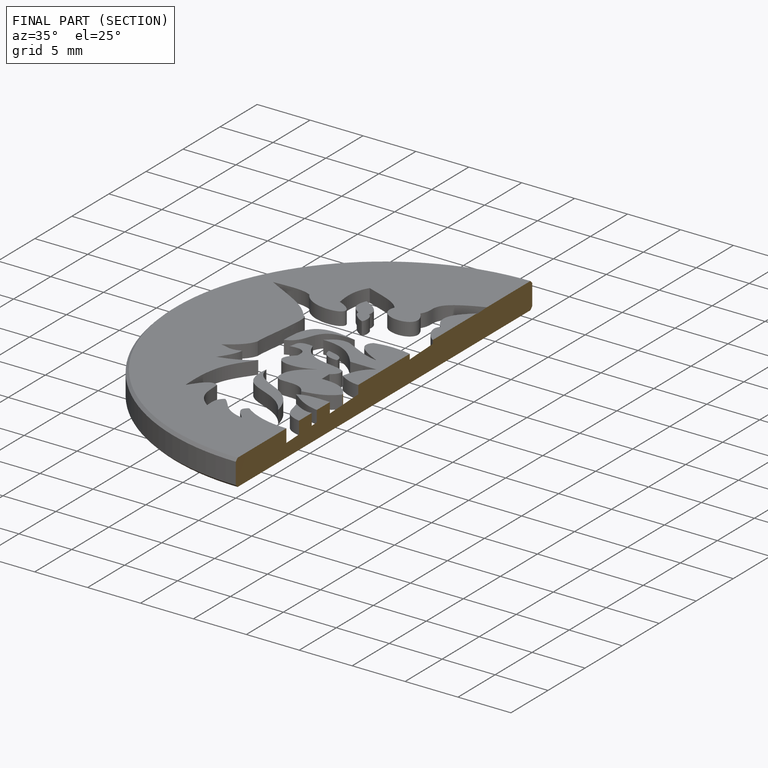
[diagram: finished part — half-section view (interior)]
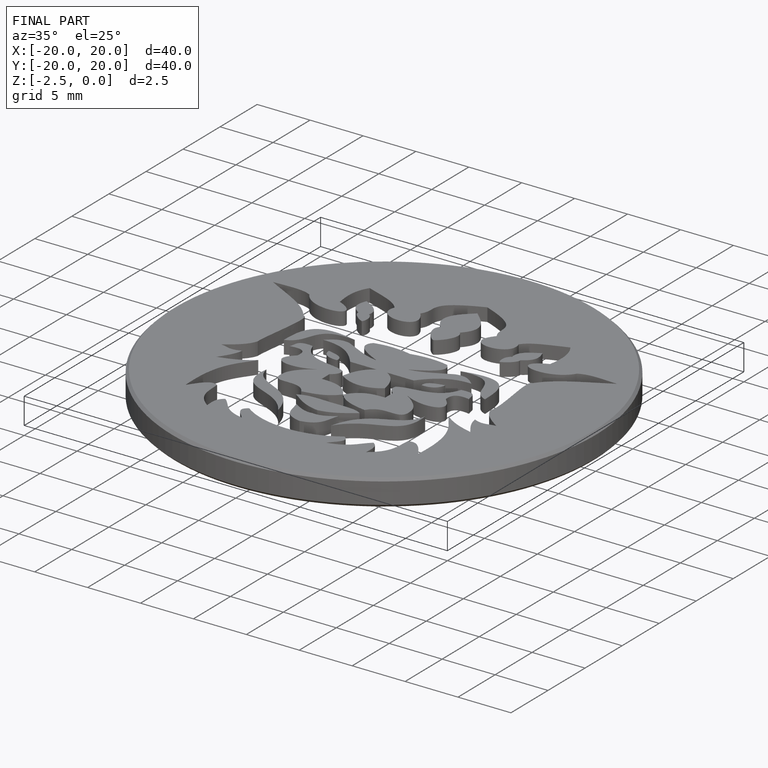
[diagram: finished part — iso view with bounding-box wireframe]
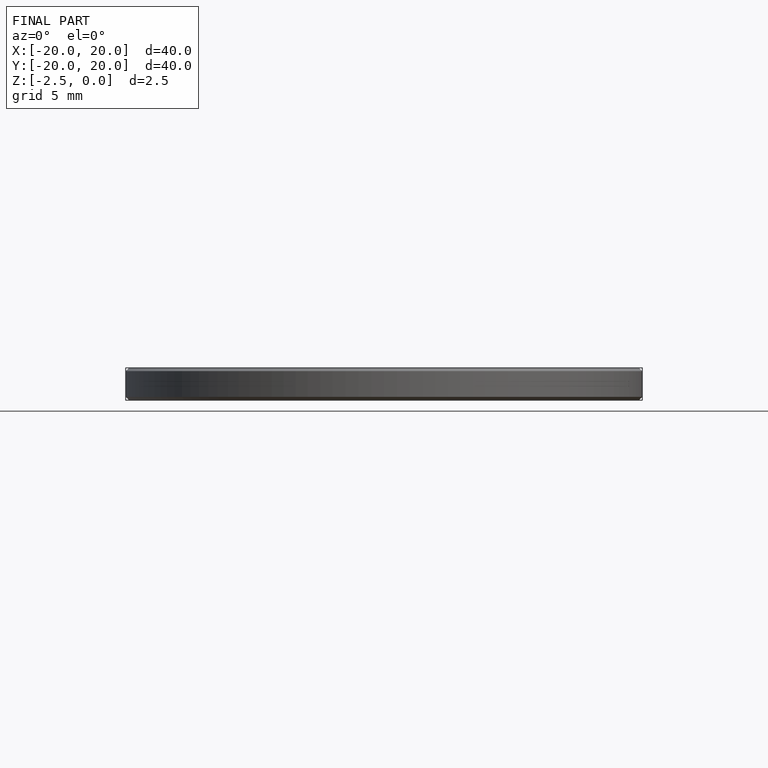
[diagram: finished part — front view with bounding-box wireframe]
